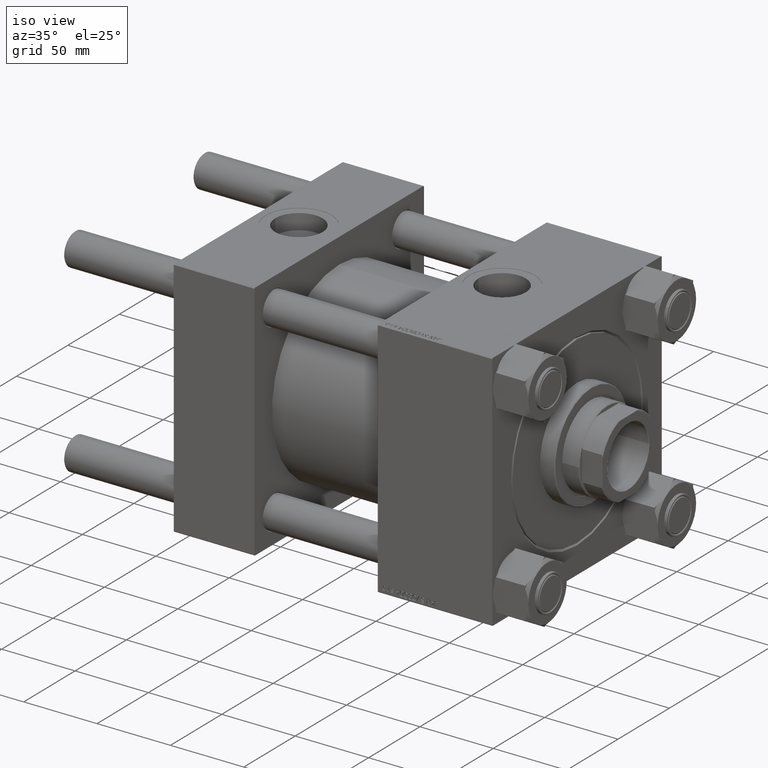
[diagram: clean part render]
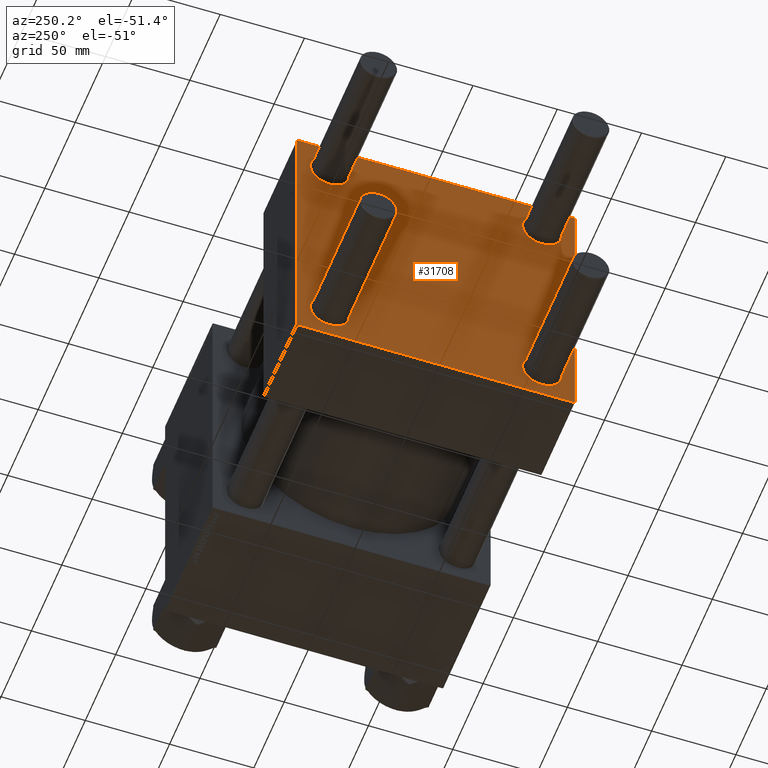
[diagram: tour spotlight — one face highlighted and labeled with its STEP entity id]
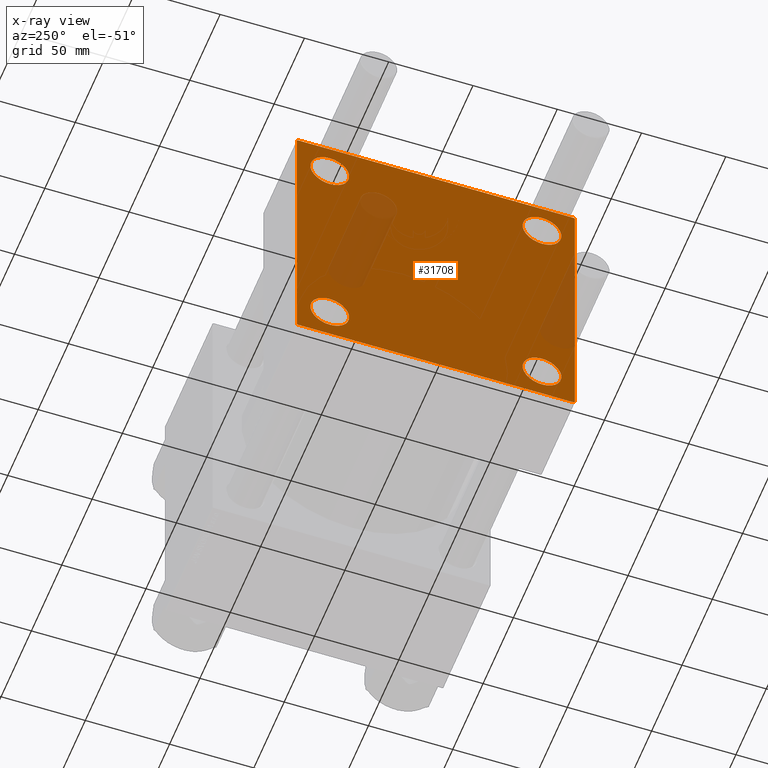
[diagram: x-ray of the same camera — body ghosted, this tour face saturated]
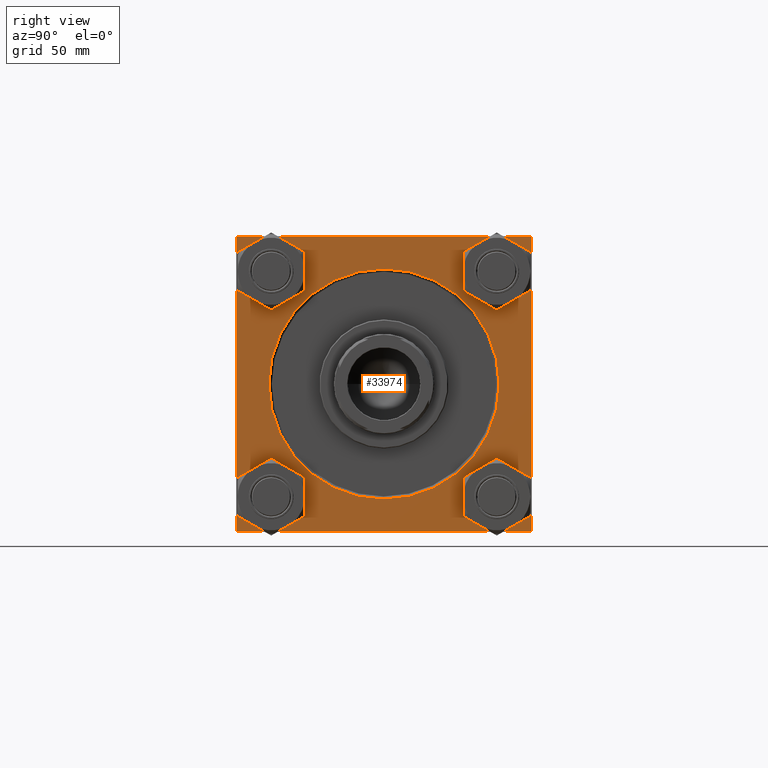
[diagram: tour spotlight — one face highlighted and labeled with its STEP entity id]
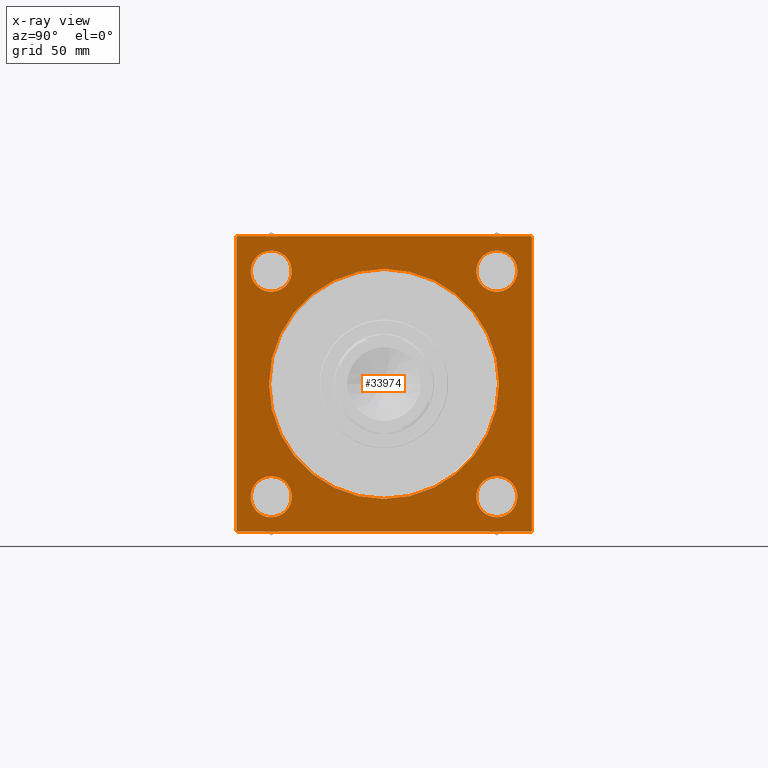
[diagram: x-ray of the same camera — body ghosted, this tour face saturated]
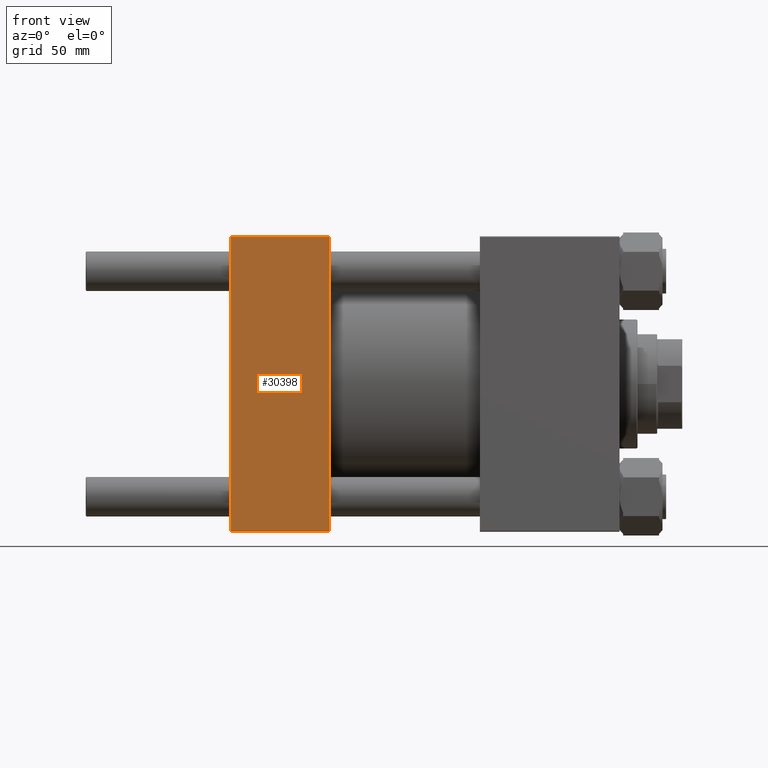
[diagram: tour spotlight — one face highlighted and labeled with its STEP entity id]
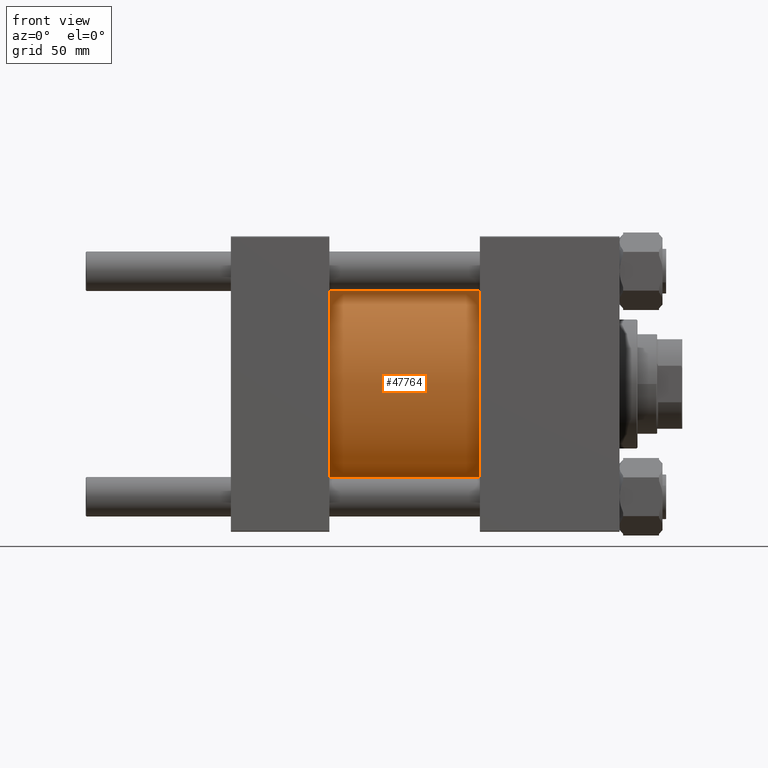
[diagram: tour spotlight — one face highlighted and labeled with its STEP entity id]
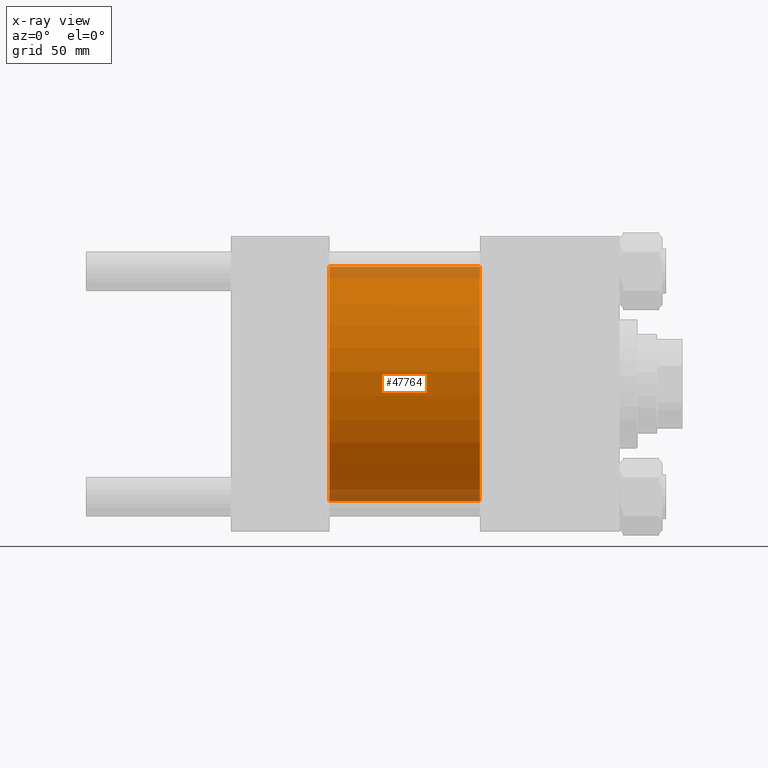
[diagram: x-ray of the same camera — body ghosted, this tour face saturated]
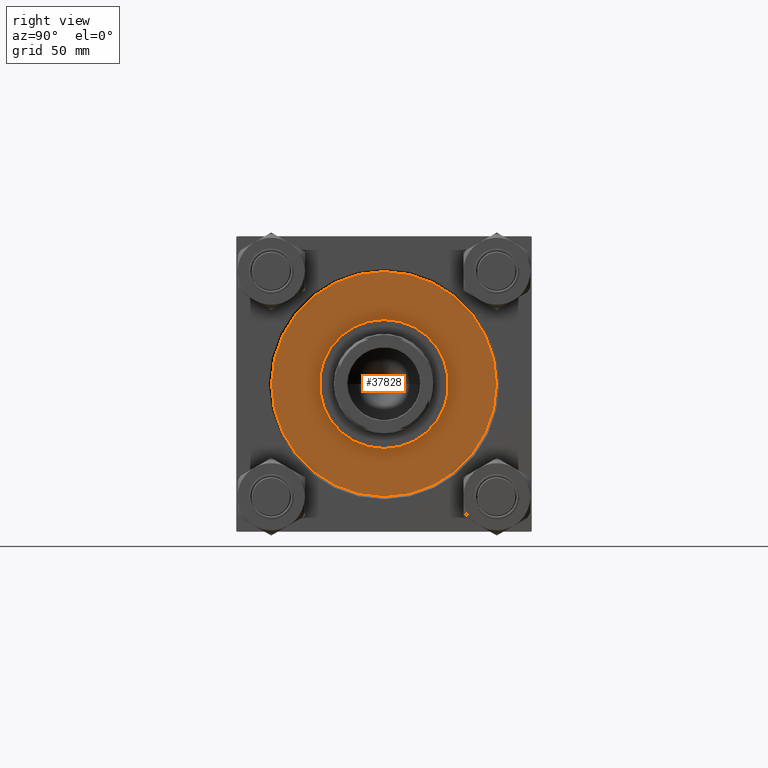
[diagram: tour spotlight — one face highlighted and labeled with its STEP entity id]
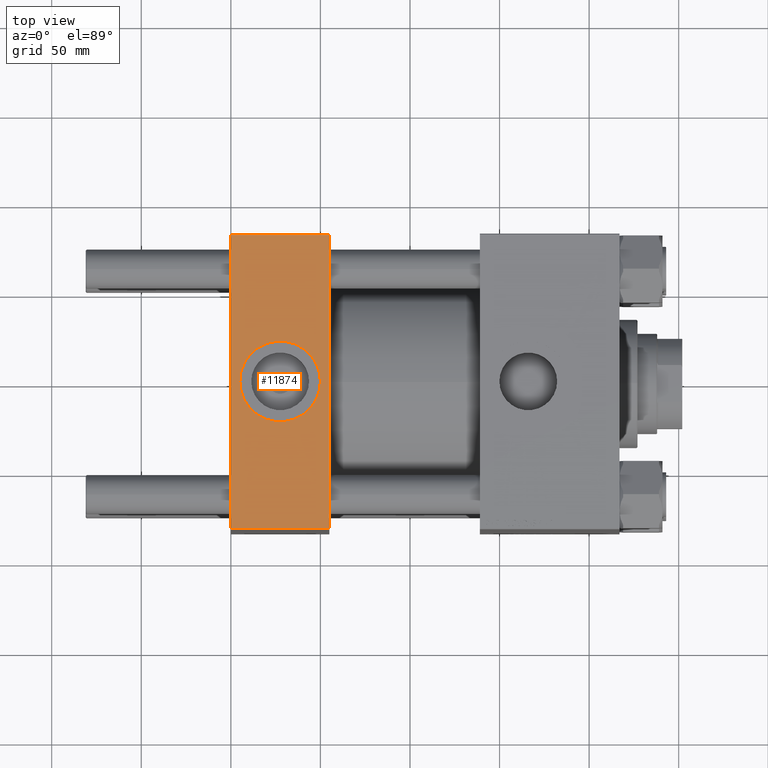
[diagram: tour spotlight — one face highlighted and labeled with its STEP entity id]
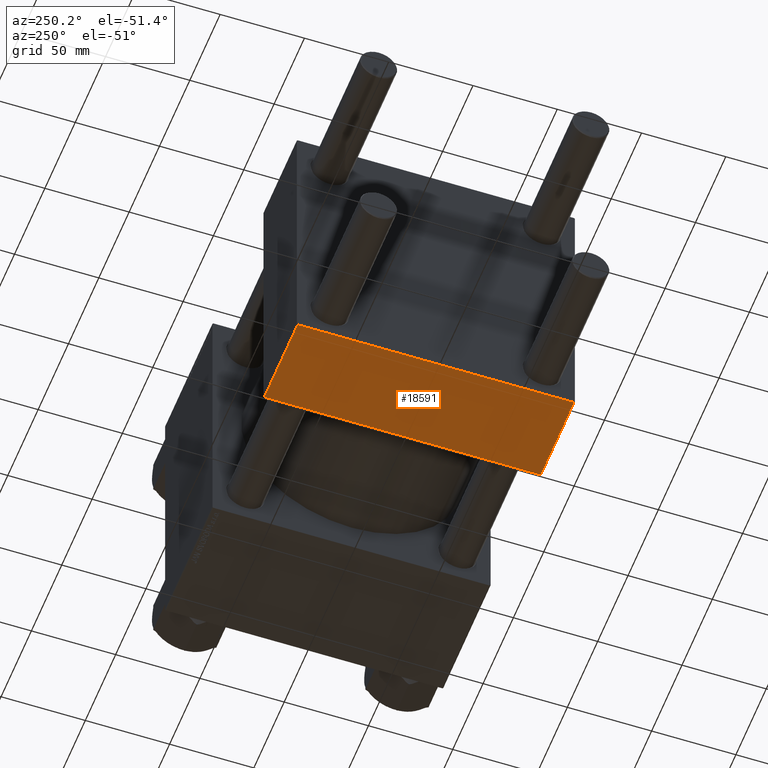
[diagram: tour spotlight — one face highlighted and labeled with its STEP entity id]
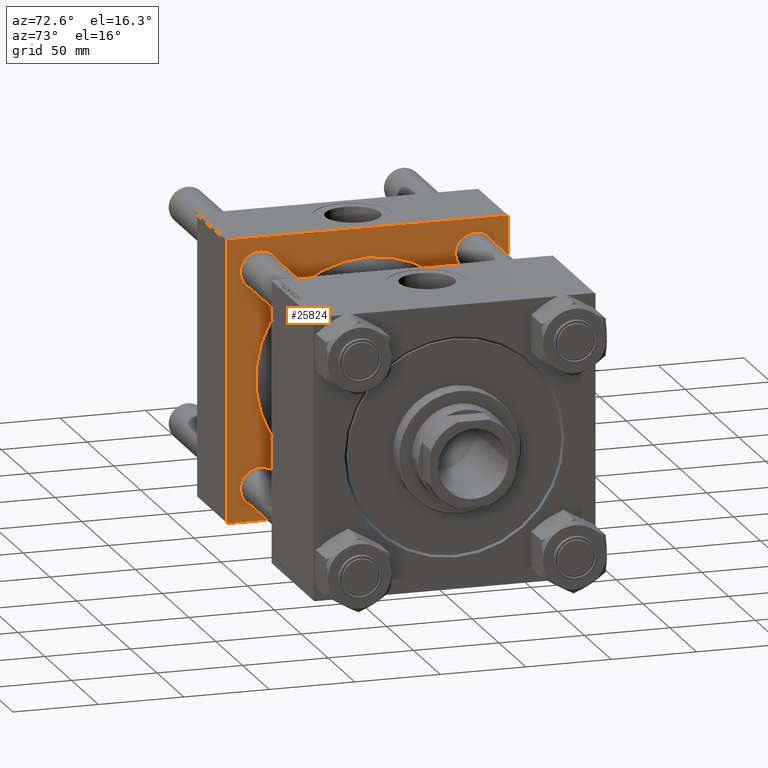
[diagram: tour spotlight — one face highlighted and labeled with its STEP entity id]
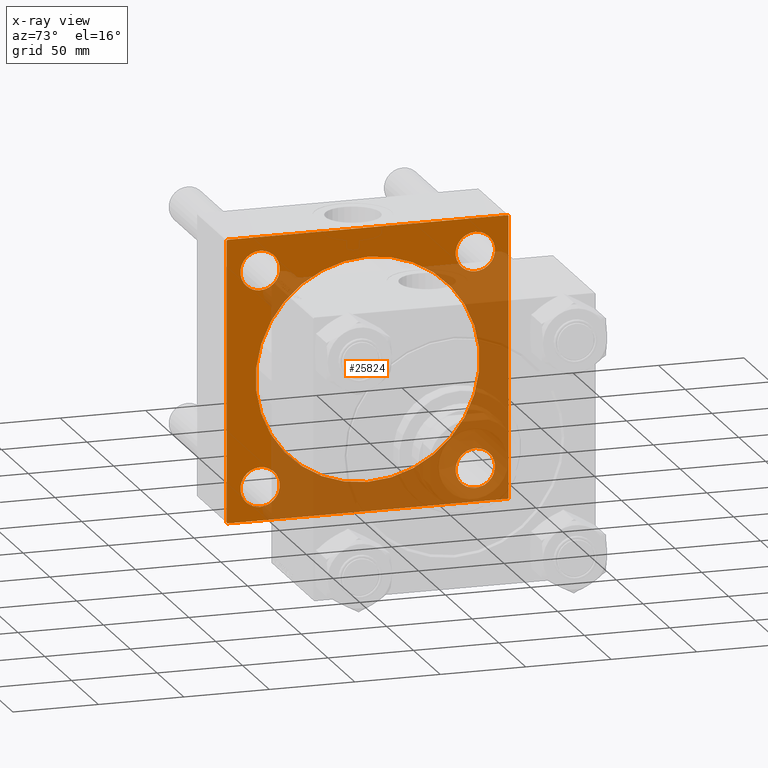
[diagram: x-ray of the same camera — body ghosted, this tour face saturated]
A machine part: a face-by-face anatomy tour. The part has 1182 B-rep faces; the first image is the clean iso view, then the 8 largest visible faces are spotlighted one at a time (largest first), each with its STEP entity span.

Face 1 — auxiliary view, entity #31708. An x-ray twin of the same camera follows (body ghosted, this face saturated) — the face is partly hidden behind the body. In plain terms, the highlighted planar face has unit normal (-1, 0, 0).
Definition (entity closure, byte-faithful):
#264 = CARTESIAN_POINT ( 'NONE',  ( 0.000000000000000000, 82.00000000000005684, 82.50000000000002842 ) ) ;
#354 = VERTEX_POINT ( 'NONE', #19620 ) ;
#358 = FACE_BOUND ( 'NONE', #7409, .T. ) ;
#392 = VECTOR ( 'NONE', #36004, 999.9999999999998863 ) ;
#1370 = VERTEX_POINT ( 'NONE', #15887 ) ;
#1835 = AXIS2_PLACEMENT_3D ( 'NONE', #24413, #16551, #39939 ) ;
#1848 = VERTEX_POINT ( 'NONE', #46249 ) ;
#2162 = CARTESIAN_POINT ( 'NONE',  ( 0.000000000000000000, -82.49999999999997158, 82.50000000000001421 ) ) ;
#2516 = DIRECTION ( 'NONE',  ( 1.000000000000000000, -0.000000000000000000, -0.000000000000000000 ) ) ;
#2835 = VERTEX_POINT ( 'NONE', #17130 ) ;
#3264 = EDGE_CURVE ( 'NONE', #1848, #36804, #14828, .T. ) ;
#3395 = CARTESIAN_POINT ( 'NONE',  ( 0.000000000000000000, 82.00000000000005684, -82.49999999999997158 ) ) ;
#3589 = AXIS2_PLACEMENT_3D ( 'NONE', #26814, #46166, #4189 ) ;
#3591 = DIRECTION ( 'NONE',  ( 1.000000000000000000, -0.000000000000000000, -0.000000000000000000 ) ) ;
#3622 = DIRECTION ( 'NONE',  ( 0.000000000000000000, -1.000000000000000000, -8.410780489584519171E-17 ) ) ;
#3944 = FACE_BOUND ( 'NONE', #48625, .T. ) ;
#4189 = DIRECTION ( 'NONE',  ( 0.000000000000000000, 0.000000000000000000, 1.000000000000000000 ) ) ;
#4455 = EDGE_CURVE ( 'NONE', #11918, #33232, #23769, .T. ) ;
#4552 = ORIENTED_EDGE ( 'NONE', *, *, #19467, .T. ) ;
#4737 = CARTESIAN_POINT ( 'NONE',  ( 0.000000000000000000, -82.25000000000115108, -82.24999999999886313 ) ) ;
#5975 = AXIS2_PLACEMENT_3D ( 'NONE', #21832, #2516, #33527 ) ;
#6289 = VERTEX_POINT ( 'NONE', #45270 ) ;
#6659 = VERTEX_POINT ( 'NONE', #48147 ) ;
#6662 = CARTESIAN_POINT ( 'NONE',  ( 0.000000000000000000, 82.50000000000002842, 82.00000000000005684 ) ) ;
#7187 = LINE ( 'NONE', #23681, #44238 ) ;
#7405 = DIRECTION ( 'NONE',  ( 0.000000000000000000, 0.000000000000000000, 1.000000000000000000 ) ) ;
#7409 = EDGE_LOOP ( 'NONE', ( #36109, #18303 ) ) ;
#7796 = LINE ( 'NONE', #35502, #39658 ) ;
#7893 = EDGE_CURVE ( 'NONE', #6659, #9413, #33633, .T. ) ;
#8000 = FACE_BOUND ( 'NONE', #36123, .T. ) ;
#8374 = AXIS2_PLACEMENT_3D ( 'NONE', #9909, #26147, #37366 ) ;
#9302 = EDGE_CURVE ( 'NONE', #36804, #1848, #14924, .T. ) ;
#9413 = VERTEX_POINT ( 'NONE', #24066 ) ;
#9599 = EDGE_LOOP ( 'NONE', ( #44645, #37124 ) ) ;
#9826 = LINE ( 'NONE', #32467, #40965 ) ;
#9909 = CARTESIAN_POINT ( 'NONE',  ( 0.000000000000000000, -62.94999999999998153, 62.95000000000001705 ) ) ;
#10390 = VECTOR ( 'NONE', #25985, 1000.000000000000114 ) ;
#10651 = EDGE_CURVE ( 'NONE', #6289, #1370, #36998, .T. ) ;
#10807 = ORIENTED_EDGE ( 'NONE', *, *, #19224, .T. ) ;
#11202 = CIRCLE ( 'NONE', #39595, 11.50000000000001066 ) ;
#11703 = AXIS2_PLACEMENT_3D ( 'NONE', #30768, #39389, #20074 ) ;
#11822 = FACE_OUTER_BOUND ( 'NONE', #28819, .T. ) ;
#11918 = VERTEX_POINT ( 'NONE', #20429 ) ;
#12739 = EDGE_CURVE ( 'NONE', #47763, #1370, #27846, .T. ) ;
#13036 = ORIENTED_EDGE ( 'NONE', *, *, #12739, .T. ) ;
#13362 = LINE ( 'NONE', #29122, #46975 ) ;
#14062 = DIRECTION ( 'NONE',  ( -0.000000000000000000, 0.7071067811865474617, 0.7071067811865474617 ) ) ;
#14442 = CARTESIAN_POINT ( 'NONE',  ( 0.000000000000000000, -62.94999999999998153, -62.95000000000001705 ) ) ;
#14828 = CIRCLE ( 'NONE', #1835, 11.50000000000001066 ) ;
#14865 = AXIS2_PLACEMENT_3D ( 'NONE', #14442, #44985, #44488 ) ;
#14916 = ORIENTED_EDGE ( 'NONE', *, *, #41611, .T. ) ;
#14924 = CIRCLE ( 'NONE', #5975, 11.50000000000001066 ) ;
#15887 = CARTESIAN_POINT ( 'NONE',  ( 0.000000000000000000, -82.50000000000000000, -81.99999999999998579 ) ) ;
#16007 = CARTESIAN_POINT ( 'NONE',  ( 0.000000000000000000, 62.95000000000000284, -74.45000000000001705 ) ) ;
#16390 = FACE_BOUND ( 'NONE', #9599, .T. ) ;
#16551 = DIRECTION ( 'NONE',  ( 1.000000000000000000, -0.000000000000000000, -0.000000000000000000 ) ) ;
#17130 = CARTESIAN_POINT ( 'NONE',  ( 0.000000000000000000, -81.99999999999997158, 82.50000000000001421 ) ) ;
#17210 = VERTEX_POINT ( 'NONE', #3395 ) ;
#17427 = DIRECTION ( 'NONE',  ( 0.000000000000000000, -1.682156097916903588E-16, -1.000000000000000000 ) ) ;
#17889 = LINE ( 'NONE', #33389, #28214 ) ;
#18303 = ORIENTED_EDGE ( 'NONE', *, *, #9302, .T. ) ;
#19203 = CARTESIAN_POINT ( 'NONE',  ( 0.000000000000000000, -62.94999999999998153, -62.95000000000001705 ) ) ;
#19224 = EDGE_CURVE ( 'NONE', #29857, #34120, #38187, .T. ) ;
#19467 = EDGE_CURVE ( 'NONE', #33232, #11918, #11202, .T. ) ;
#19620 = CARTESIAN_POINT ( 'NONE',  ( 0.000000000000000000, -62.94999999999998153, 74.45000000000003126 ) ) ;
#20023 = AXIS2_PLACEMENT_3D ( 'NONE', #40512, #3591, #7405 ) ;
#20074 = DIRECTION ( 'NONE',  ( 0.000000000000000000, 0.000000000000000000, 1.000000000000000000 ) ) ;
#20429 = CARTESIAN_POINT ( 'NONE',  ( 0.000000000000000000, -62.94999999999998153, -51.45000000000000995 ) ) ;
#21634 = CARTESIAN_POINT ( 'NONE',  ( 0.000000000000000000, -62.94999999999998153, 51.45000000000000995 ) ) ;
#21769 = EDGE_CURVE ( 'NONE', #17210, #47763, #13362, .T. ) ;
#21832 = CARTESIAN_POINT ( 'NONE',  ( 0.000000000000000000, 62.95000000000000284, -62.95000000000000284 ) ) ;
#22420 = CARTESIAN_POINT ( 'NONE',  ( 0.000000000000000000, 82.25000000000002842, 82.25000000000002842 ) ) ;
#22791 = DIRECTION ( 'NONE',  ( -0.000000000000000000, -0.7071067811865474617, -0.7071067811865474617 ) ) ;
#23681 = CARTESIAN_POINT ( 'NONE',  ( 0.000000000000000000, 82.50000000000002842, 82.50000000000002842 ) ) ;
#23769 = CIRCLE ( 'NONE', #14865, 11.50000000000001066 ) ;
#24009 = DIRECTION ( 'NONE',  ( 1.000000000000000000, -0.000000000000000000, -0.000000000000000000 ) ) ;
#24066 = CARTESIAN_POINT ( 'NONE',  ( 0.000000000000000000, 62.95000000000000284, 74.45000000000001705 ) ) ;
#24413 = CARTESIAN_POINT ( 'NONE',  ( 0.000000000000000000, 62.95000000000000284, -62.95000000000000284 ) ) ;
#24640 = CIRCLE ( 'NONE', #31148, 11.50000000000001066 ) ;
#24653 = ORIENTED_EDGE ( 'NONE', *, *, #7893, .T. ) ;
#25890 = CARTESIAN_POINT ( 'NONE',  ( 0.000000000000000000, 82.50000000000002842, -82.00000000000000000 ) ) ;
#25985 = DIRECTION ( 'NONE',  ( 0.000000000000000000, 0.7071067811865474617, -0.7071067811865474617 ) ) ;
#26147 = DIRECTION ( 'NONE',  ( 1.000000000000000000, -0.000000000000000000, -0.000000000000000000 ) ) ;
#26814 = CARTESIAN_POINT ( 'NONE',  ( 0.000000000000000000, 0.000000000000000000, 0.000000000000000000 ) ) ;
#26820 = DIRECTION ( 'NONE',  ( 0.000000000000000000, 0.000000000000000000, 1.000000000000000000 ) ) ;
#26842 = EDGE_CURVE ( 'NONE', #354, #36700, #24640, .T. ) ;
#27846 = LINE ( 'NONE', #4737, #392 ) ;
#28214 = VECTOR ( 'NONE', #14062, 1000.000000000000114 ) ;
#28819 = EDGE_LOOP ( 'NONE', ( #38983, #33313, #36633, #13036, #43367, #36068, #47606, #10807 ) ) ;
#28830 = EDGE_CURVE ( 'NONE', #36700, #354, #30307, .T. ) ;
#29122 = CARTESIAN_POINT ( 'NONE',  ( 0.000000000000000000, 82.50000000000002842, -82.49999999999997158 ) ) ;
#29644 = CARTESIAN_POINT ( 'NONE',  ( 0.000000000000000000, -62.94999999999998153, 62.95000000000001705 ) ) ;
#29857 = VERTEX_POINT ( 'NONE', #264 ) ;
#30133 = DIRECTION ( 'NONE',  ( 1.000000000000000000, -0.000000000000000000, -0.000000000000000000 ) ) ;
#30307 = CIRCLE ( 'NONE', #8374, 11.50000000000001066 ) ;
#30768 = CARTESIAN_POINT ( 'NONE',  ( 0.000000000000000000, 62.95000000000000284, 62.95000000000000284 ) ) ;
#30894 = PLANE ( 'NONE',  #3589 ) ;
#31148 = AXIS2_PLACEMENT_3D ( 'NONE', #29644, #30133, #37765 ) ;
#31337 = EDGE_CURVE ( 'NONE', #29857, #2835, #7187, .T. ) ;
#31336 = CARTESIAN_POINT ( 'NONE',  ( 0.000000000000000000, -82.00000000000000000, -82.50000000000000000 ) ) ;
#31514 = EDGE_CURVE ( 'NONE', #34120, #49564, #9826, .T. ) ;
#31708 = ADVANCED_FACE ( 'NONE', ( #16390, #3944, #358, #8000, #11822 ), #30894, .T. ) ;
#32467 = CARTESIAN_POINT ( 'NONE',  ( 0.000000000000000000, 82.50000000000002842, 82.50000000000002842 ) ) ;
#33232 = VERTEX_POINT ( 'NONE', #42996 ) ;
#33313 = ORIENTED_EDGE ( 'NONE', *, *, #46589, .T. ) ;
#33389 = CARTESIAN_POINT ( 'NONE',  ( 0.000000000000000000, -82.25000000000000000, 82.25000000000000000 ) ) ;
#33527 = DIRECTION ( 'NONE',  ( 0.000000000000000000, 0.000000000000000000, 1.000000000000000000 ) ) ;
#33633 = CIRCLE ( 'NONE', #11703, 11.50000000000001066 ) ;
#34120 = VERTEX_POINT ( 'NONE', #6662 ) ;
#35502 = CARTESIAN_POINT ( 'NONE',  ( 0.000000000000000000, 82.25000000000001421, -82.25000000000001421 ) ) ;
#36004 = DIRECTION ( 'NONE',  ( 0.000000000000000000, -0.7071067811865376918, 0.7071067811865574537 ) ) ;
#36068 = ORIENTED_EDGE ( 'NONE', *, *, #39649, .T. ) ;
#36109 = ORIENTED_EDGE ( 'NONE', *, *, #3264, .T. ) ;
#36123 = EDGE_LOOP ( 'NONE', ( #14916, #24653 ) ) ;
#36633 = ORIENTED_EDGE ( 'NONE', *, *, #21769, .T. ) ;
#36700 = VERTEX_POINT ( 'NONE', #21634 ) ;
#36748 = DIRECTION ( 'NONE',  ( 0.000000000000000000, -1.000000000000000000, -1.682156097916903588E-16 ) ) ;
#36804 = VERTEX_POINT ( 'NONE', #16007 ) ;
#36998 = LINE ( 'NONE', #2162, #40931 ) ;
#37124 = ORIENTED_EDGE ( 'NONE', *, *, #28830, .T. ) ;
#37366 = DIRECTION ( 'NONE',  ( 0.000000000000000000, 0.000000000000000000, 1.000000000000000000 ) ) ;
#37765 = DIRECTION ( 'NONE',  ( 0.000000000000000000, 0.000000000000000000, 1.000000000000000000 ) ) ;
#38187 = LINE ( 'NONE', #22420, #10390 ) ;
#38983 = ORIENTED_EDGE ( 'NONE', *, *, #31514, .T. ) ;
#39389 = DIRECTION ( 'NONE',  ( 1.000000000000000000, -0.000000000000000000, -0.000000000000000000 ) ) ;
#39595 = AXIS2_PLACEMENT_3D ( 'NONE', #19203, #24009, #26820 ) ;
#39649 = EDGE_CURVE ( 'NONE', #6289, #2835, #17889, .T. ) ;
#39658 = VECTOR ( 'NONE', #22791, 1000.000000000000114 ) ;
#39939 = DIRECTION ( 'NONE',  ( 0.000000000000000000, 0.000000000000000000, 1.000000000000000000 ) ) ;
#40512 = CARTESIAN_POINT ( 'NONE',  ( 0.000000000000000000, 62.95000000000000284, 62.95000000000000284 ) ) ;
#40931 = VECTOR ( 'NONE', #17427, 1000.000000000000000 ) ;
#40965 = VECTOR ( 'NONE', #44175, 1000.000000000000000 ) ;
#41611 = EDGE_CURVE ( 'NONE', #9413, #6659, #46824, .T. ) ;
#42996 = CARTESIAN_POINT ( 'NONE',  ( 0.000000000000000000, -62.94999999999998153, -74.45000000000003126 ) ) ;
#43367 = ORIENTED_EDGE ( 'NONE', *, *, #10651, .F. ) ;
#44175 = DIRECTION ( 'NONE',  ( 0.000000000000000000, 0.000000000000000000, -1.000000000000000000 ) ) ;
#44238 = VECTOR ( 'NONE', #3622, 1000.000000000000000 ) ;
#44488 = DIRECTION ( 'NONE',  ( 0.000000000000000000, 0.000000000000000000, 1.000000000000000000 ) ) ;
#44645 = ORIENTED_EDGE ( 'NONE', *, *, #26842, .T. ) ;
#44985 = DIRECTION ( 'NONE',  ( 1.000000000000000000, -0.000000000000000000, -0.000000000000000000 ) ) ;
#45270 = CARTESIAN_POINT ( 'NONE',  ( 0.000000000000000000, -82.49999999999997158, 82.00000000000001421 ) ) ;
#46166 = DIRECTION ( 'NONE',  ( -1.000000000000000000, 0.000000000000000000, 0.000000000000000000 ) ) ;
#46249 = CARTESIAN_POINT ( 'NONE',  ( 0.000000000000000000, 62.95000000000000284, -51.44999999999999574 ) ) ;
#46589 = EDGE_CURVE ( 'NONE', #49564, #17210, #7796, .T. ) ;
#46824 = CIRCLE ( 'NONE', #20023, 11.50000000000001066 ) ;
#46975 = VECTOR ( 'NONE', #36748, 1000.000000000000000 ) ;
#47606 = ORIENTED_EDGE ( 'NONE', *, *, #31337, .F. ) ;
#47763 = VERTEX_POINT ( 'NONE', #31336 ) ;
#48147 = CARTESIAN_POINT ( 'NONE',  ( 0.000000000000000000, 62.95000000000000284, 51.44999999999999574 ) ) ;
#48625 = EDGE_LOOP ( 'NONE', ( #50054, #4552 ) ) ;
#49564 = VERTEX_POINT ( 'NONE', #25890 ) ;
#50054 = ORIENTED_EDGE ( 'NONE', *, *, #4455, .T. ) ;

Face 2 — right view, entity #33974. An x-ray twin of the same camera follows (body ghosted, this face saturated) — the face is partly hidden behind the body. In plain terms, the highlighted planar face has unit normal (-1, 0, 0).
Definition (entity closure, byte-faithful):
#26 = ORIENTED_EDGE ( 'NONE', *, *, #34300, .T. ) ;
#193 = CIRCLE ( 'NONE', #28650, 64.24999999999997158 ) ;
#371 = DIRECTION ( 'NONE',  ( -1.000000000000000000, -0.000000000000000000, 0.000000000000000000 ) ) ;
#592 = VERTEX_POINT ( 'NONE', #18574 ) ;
#941 = CARTESIAN_POINT ( 'NONE',  ( 217.0000000000000284, 7.868355684521741158E-15, 64.24999999999997158 ) ) ;
#1546 = CARTESIAN_POINT ( 'NONE',  ( 217.0000000000000284, 62.95000000000000284, -62.95000000000000284 ) ) ;
#1628 = DIRECTION ( 'NONE',  ( -1.000000000000000000, -0.000000000000000000, 0.000000000000000000 ) ) ;
#2114 = FACE_BOUND ( 'NONE', #12487, .T. ) ;
#2471 = VERTEX_POINT ( 'NONE', #28877 ) ;
#2863 = DIRECTION ( 'NONE',  ( -0.000000000000000000, 0.7071067811865474617, 0.7071067811865474617 ) ) ;
#3227 = CARTESIAN_POINT ( 'NONE',  ( 217.0000000000000284, -82.49999999999997158, 82.49999999999997158 ) ) ;
#4906 = VERTEX_POINT ( 'NONE', #17114 ) ;
#5205 = CIRCLE ( 'NONE', #39306, 11.49999999999995381 ) ;
#5427 = DIRECTION ( 'NONE',  ( 0.000000000000000000, 0.000000000000000000, 1.000000000000000000 ) ) ;
#5468 = DIRECTION ( 'NONE',  ( -1.000000000000000000, -0.000000000000000000, 0.000000000000000000 ) ) ;
#5500 = VERTEX_POINT ( 'NONE', #44139 ) ;
#5930 = DIRECTION ( 'NONE',  ( -1.000000000000000000, -0.000000000000000000, 0.000000000000000000 ) ) ;
#6734 = EDGE_CURVE ( 'NONE', #21352, #26808, #12809, .T. ) ;
#7145 = DIRECTION ( 'NONE',  ( 0.000000000000000000, -1.000000000000000000, 0.000000000000000000 ) ) ;
#7237 = DIRECTION ( 'NONE',  ( 0.000000000000000000, 0.000000000000000000, 1.000000000000000000 ) ) ;
#7475 = LINE ( 'NONE', #37994, #41855 ) ;
#7494 = ORIENTED_EDGE ( 'NONE', *, *, #36462, .T. ) ;
#8450 = AXIS2_PLACEMENT_3D ( 'NONE', #38275, #371, #50228 ) ;
#9256 = CARTESIAN_POINT ( 'NONE',  ( 217.0000000000000284, -62.94999999999998153, 62.95000000000001705 ) ) ;
#9277 = CARTESIAN_POINT ( 'NONE',  ( 217.0000000000000284, 82.50000000000001421, 82.50000000000000000 ) ) ;
#9359 = ORIENTED_EDGE ( 'NONE', *, *, #46842, .T. ) ;
#9445 = EDGE_LOOP ( 'NONE', ( #33629, #46887 ) ) ;
#9532 = DIRECTION ( 'NONE',  ( 0.000000000000000000, 0.000000000000000000, 1.000000000000000000 ) ) ;
#9567 = CARTESIAN_POINT ( 'NONE',  ( 217.0000000000000284, 82.50000000000001421, -82.00000000000005684 ) ) ;
#9639 = VECTOR ( 'NONE', #2863, 1000.000000000000114 ) ;
#10186 = LINE ( 'NONE', #32830, #32126 ) ;
#10255 = CARTESIAN_POINT ( 'NONE',  ( 217.0000000000000284, -82.49999999999997158, 81.99999999999991473 ) ) ;
#10280 = EDGE_CURVE ( 'NONE', #11459, #42439, #10896, .T. ) ;
#10443 = EDGE_CURVE ( 'NONE', #21352, #44318, #21213, .T. ) ;
#10512 = EDGE_CURVE ( 'NONE', #42439, #11459, #5205, .T. ) ;
#10518 = CARTESIAN_POINT ( 'NONE',  ( 217.0000000000000284, 82.50000000000001421, -82.00000000000005684 ) ) ;
#10771 = ORIENTED_EDGE ( 'NONE', *, *, #27742, .T. ) ;
#10896 = CIRCLE ( 'NONE', #8450, 11.49999999999995381 ) ;
#11206 = ORIENTED_EDGE ( 'NONE', *, *, #16280, .T. ) ;
#11459 = VERTEX_POINT ( 'NONE', #25908 ) ;
#11461 = CARTESIAN_POINT ( 'NONE',  ( 217.0000000000000284, -82.49999999999997158, 81.99999999999991473 ) ) ;
#11693 = AXIS2_PLACEMENT_3D ( 'NONE', #9256, #1628, #32902 ) ;
#12054 = CARTESIAN_POINT ( 'NONE',  ( 217.0000000000000284, -62.94999999999998153, 62.95000000000001705 ) ) ;
#12169 = CARTESIAN_POINT ( 'NONE',  ( 217.0000000000000284, 62.95000000000000284, -51.45000000000005258 ) ) ;
#12207 = DIRECTION ( 'NONE',  ( -1.000000000000000000, -0.000000000000000000, 0.000000000000000000 ) ) ;
#12299 = DIRECTION ( 'NONE',  ( -1.000000000000000000, -0.000000000000000000, 0.000000000000000000 ) ) ;
#12401 = VERTEX_POINT ( 'NONE', #12169 ) ;
#12423 = ORIENTED_EDGE ( 'NONE', *, *, #10443, .F. ) ;
#12487 = EDGE_LOOP ( 'NONE', ( #7494, #26 ) ) ;
#12563 = DIRECTION ( 'NONE',  ( 0.000000000000000000, 0.000000000000000000, 1.000000000000000000 ) ) ;
#12645 = EDGE_CURVE ( 'NONE', #27824, #19234, #38058, .T. ) ;
#12809 = LINE ( 'NONE', #32384, #37653 ) ;
#14072 = DIRECTION ( 'NONE',  ( -0.000000000000000000, -0.7071067811865573427, -0.7071067811865376918 ) ) ;
#14564 = LINE ( 'NONE', #9567, #9639 ) ;
#14618 = DIRECTION ( 'NONE',  ( -1.000000000000000000, -0.000000000000000000, 0.000000000000000000 ) ) ;
#16125 = CARTESIAN_POINT ( 'NONE',  ( 217.0000000000000284, 62.95000000000000284, 51.45000000000005258 ) ) ;
#16155 = AXIS2_PLACEMENT_3D ( 'NONE', #27054, #39257, #12563 ) ;
#16280 = EDGE_CURVE ( 'NONE', #45753, #19036, #22432, .T. ) ;
#16364 = EDGE_CURVE ( 'NONE', #33552, #592, #45183, .T. ) ;
#17114 = CARTESIAN_POINT ( 'NONE',  ( 217.0000000000000284, -62.94999999999998153, -74.44999999999997442 ) ) ;
#17204 = CARTESIAN_POINT ( 'NONE',  ( 217.0000000000000284, 62.95000000000000284, -62.95000000000000284 ) ) ;
#17212 = CARTESIAN_POINT ( 'NONE',  ( 217.0000000000000284, 82.00000000000004263, 82.50000000000000000 ) ) ;
#17350 = VERTEX_POINT ( 'NONE', #23457 ) ;
#17442 = EDGE_LOOP ( 'NONE', ( #40681, #9359 ) ) ;
#17513 = AXIS2_PLACEMENT_3D ( 'NONE', #48644, #5930, #5427 ) ;
#17628 = FACE_BOUND ( 'NONE', #40267, .T. ) ;
#18203 = CIRCLE ( 'NONE', #11693, 11.49999999999995381 ) ;
#18574 = CARTESIAN_POINT ( 'NONE',  ( 217.0000000000000284, -62.94999999999998153, 51.45000000000006679 ) ) ;
#19036 = VERTEX_POINT ( 'NONE', #40007 ) ;
#19234 = VERTEX_POINT ( 'NONE', #49634 ) ;
#19830 = ORIENTED_EDGE ( 'NONE', *, *, #35048, .T. ) ;
#20026 = EDGE_CURVE ( 'NONE', #5500, #45251, #41986, .T. ) ;
#20548 = ORIENTED_EDGE ( 'NONE', *, *, #10280, .T. ) ;
#21188 = DIRECTION ( 'NONE',  ( 0.000000000000000000, -0.7071067811865474617, 0.7071067811865474617 ) ) ;
#21213 = LINE ( 'NONE', #9277, #21425 ) ;
#21352 = VERTEX_POINT ( 'NONE', #30470 ) ;
#21398 = CARTESIAN_POINT ( 'NONE',  ( 217.0000000000000284, -82.00000000000004263, -82.50000000000002842 ) ) ;
#21425 = VECTOR ( 'NONE', #32155, 1000.000000000000000 ) ;
#22276 = EDGE_CURVE ( 'NONE', #5500, #44318, #14564, .T. ) ;
#22432 = CIRCLE ( 'NONE', #28945, 64.24999999999997158 ) ;
#22494 = AXIS2_PLACEMENT_3D ( 'NONE', #37503, #41329, #41830 ) ;
#22724 = DIRECTION ( 'NONE',  ( 0.000000000000000000, -1.000000000000000000, -1.682156097916904081E-16 ) ) ;
#23214 = AXIS2_PLACEMENT_3D ( 'NONE', #17204, #39310, #39824 ) ;
#23384 = EDGE_CURVE ( 'NONE', #17350, #27824, #37220, .T. ) ;
#23457 = CARTESIAN_POINT ( 'NONE',  ( 217.0000000000000284, -81.99999999999990052, 82.49999999999997158 ) ) ;
#24515 = CARTESIAN_POINT ( 'NONE',  ( 217.0000000000000284, 62.95000000000000284, 62.95000000000000284 ) ) ;
#24794 = VERTEX_POINT ( 'NONE', #41722 ) ;
#25731 = PLANE ( 'NONE',  #17513 ) ;
#25908 = CARTESIAN_POINT ( 'NONE',  ( 217.0000000000000284, 62.95000000000000284, 74.44999999999996021 ) ) ;
#26808 = VERTEX_POINT ( 'NONE', #17212 ) ;
#27054 = CARTESIAN_POINT ( 'NONE',  ( 217.0000000000000284, -62.94999999999998153, -62.95000000000001705 ) ) ;
#27385 = VECTOR ( 'NONE', #7145, 1000.000000000000000 ) ;
#27742 = EDGE_CURVE ( 'NONE', #19036, #45753, #193, .T. ) ;
#27824 = VERTEX_POINT ( 'NONE', #11461 ) ;
#28650 = AXIS2_PLACEMENT_3D ( 'NONE', #30531, #12207, #39148 ) ;
#28877 = CARTESIAN_POINT ( 'NONE',  ( 217.0000000000000284, 62.95000000000000284, -74.44999999999996021 ) ) ;
#28945 = AXIS2_PLACEMENT_3D ( 'NONE', #46149, #14618, #7237 ) ;
#30470 = CARTESIAN_POINT ( 'NONE',  ( 217.0000000000000284, 82.50000000000001421, 82.00000000000002842 ) ) ;
#30531 = CARTESIAN_POINT ( 'NONE',  ( 217.0000000000000284, 0.000000000000000000, 0.000000000000000000 ) ) ;
#31039 = EDGE_CURVE ( 'NONE', #592, #33552, #18203, .T. ) ;
#31107 = ORIENTED_EDGE ( 'NONE', *, *, #22276, .T. ) ;
#31866 = DIRECTION ( 'NONE',  ( 0.000000000000000000, 0.000000000000000000, 1.000000000000000000 ) ) ;
#32126 = VECTOR ( 'NONE', #44546, 999.9999999999998863 ) ;
#32155 = DIRECTION ( 'NONE',  ( 0.000000000000000000, 0.000000000000000000, -1.000000000000000000 ) ) ;
#32384 = CARTESIAN_POINT ( 'NONE',  ( 217.0000000000000284, 82.00000000000004263, 82.50000000000000000 ) ) ;
#32830 = CARTESIAN_POINT ( 'NONE',  ( 217.0000000000000284, -82.00000000000004263, -82.50000000000002842 ) ) ;
#32902 = DIRECTION ( 'NONE',  ( 0.000000000000000000, 0.000000000000000000, 1.000000000000000000 ) ) ;
#32913 = VECTOR ( 'NONE', #38301, 1000.000000000000000 ) ;
#33130 = FACE_OUTER_BOUND ( 'NONE', #37487, .T. ) ;
#33145 = ORIENTED_EDGE ( 'NONE', *, *, #33810, .T. ) ;
#33316 = DIRECTION ( 'NONE',  ( 0.000000000000000000, 0.000000000000000000, 1.000000000000000000 ) ) ;
#33552 = VERTEX_POINT ( 'NONE', #50304 ) ;
#33629 = ORIENTED_EDGE ( 'NONE', *, *, #31039, .T. ) ;
#33810 = EDGE_CURVE ( 'NONE', #26808, #17350, #7475, .T. ) ;
#33935 = ORIENTED_EDGE ( 'NONE', *, *, #12645, .T. ) ;
#33974 = ADVANCED_FACE ( 'NONE', ( #45091, #2114, #17628, #41261, #37198, #33130 ), #25731, .F. ) ;
#34040 = ORIENTED_EDGE ( 'NONE', *, *, #6734, .T. ) ;
#34300 = EDGE_CURVE ( 'NONE', #12401, #2471, #34554, .T. ) ;
#34554 = CIRCLE ( 'NONE', #46720, 11.49999999999995381 ) ;
#34706 = CIRCLE ( 'NONE', #22494, 11.49999999999995381 ) ;
#35048 = EDGE_CURVE ( 'NONE', #19234, #45251, #10186, .T. ) ;
#35376 = ORIENTED_EDGE ( 'NONE', *, *, #10512, .T. ) ;
#36462 = EDGE_CURVE ( 'NONE', #2471, #12401, #50044, .T. ) ;
#36903 = EDGE_LOOP ( 'NONE', ( #10771, #11206 ) ) ;
#37198 = FACE_BOUND ( 'NONE', #36903, .T. ) ;
#37220 = LINE ( 'NONE', #10255, #38917 ) ;
#37487 = EDGE_LOOP ( 'NONE', ( #33935, #19830, #49083, #31107, #12423, #34040, #33145, #41751 ) ) ;
#37503 = CARTESIAN_POINT ( 'NONE',  ( 217.0000000000000284, -62.94999999999998153, -62.95000000000001705 ) ) ;
#37653 = VECTOR ( 'NONE', #21188, 1000.000000000000114 ) ;
#37994 = CARTESIAN_POINT ( 'NONE',  ( 217.0000000000000284, 82.50000000000001421, 82.50000000000000000 ) ) ;
#38058 = LINE ( 'NONE', #3227, #32913 ) ;
#38275 = CARTESIAN_POINT ( 'NONE',  ( 217.0000000000000284, 62.95000000000000284, 62.95000000000000284 ) ) ;
#38301 = DIRECTION ( 'NONE',  ( 0.000000000000000000, -1.682156097916903834E-16, -1.000000000000000000 ) ) ;
#38917 = VECTOR ( 'NONE', #14072, 1000.000000000000114 ) ;
#39148 = DIRECTION ( 'NONE',  ( 0.000000000000000000, 0.000000000000000000, 1.000000000000000000 ) ) ;
#39257 = DIRECTION ( 'NONE',  ( -1.000000000000000000, -0.000000000000000000, 0.000000000000000000 ) ) ;
#39306 = AXIS2_PLACEMENT_3D ( 'NONE', #24515, #5468, #9532 ) ;
#39310 = DIRECTION ( 'NONE',  ( -1.000000000000000000, -0.000000000000000000, 0.000000000000000000 ) ) ;
#39411 = EDGE_CURVE ( 'NONE', #4906, #24794, #34706, .T. ) ;
#39824 = DIRECTION ( 'NONE',  ( 0.000000000000000000, 0.000000000000000000, 1.000000000000000000 ) ) ;
#40007 = CARTESIAN_POINT ( 'NONE',  ( 217.0000000000000284, 0.000000000000000000, -64.24999999999997158 ) ) ;
#40267 = EDGE_LOOP ( 'NONE', ( #35376, #20548 ) ) ;
#40681 = ORIENTED_EDGE ( 'NONE', *, *, #39411, .T. ) ;
#41261 = FACE_BOUND ( 'NONE', #9445, .T. ) ;
#41329 = DIRECTION ( 'NONE',  ( -1.000000000000000000, -0.000000000000000000, 0.000000000000000000 ) ) ;
#41722 = CARTESIAN_POINT ( 'NONE',  ( 217.0000000000000284, -62.94999999999998153, -51.45000000000006679 ) ) ;
#41751 = ORIENTED_EDGE ( 'NONE', *, *, #23384, .T. ) ;
#41830 = DIRECTION ( 'NONE',  ( 0.000000000000000000, 0.000000000000000000, 1.000000000000000000 ) ) ;
#41855 = VECTOR ( 'NONE', #22724, 1000.000000000000000 ) ;
#41930 = AXIS2_PLACEMENT_3D ( 'NONE', #12054, #12299, #31866 ) ;
#41986 = LINE ( 'NONE', #49604, #27385 ) ;
#42439 = VERTEX_POINT ( 'NONE', #16125 ) ;
#44139 = CARTESIAN_POINT ( 'NONE',  ( 217.0000000000000284, 82.00000000000004263, -82.50000000000002842 ) ) ;
#44318 = VERTEX_POINT ( 'NONE', #10518 ) ;
#44546 = DIRECTION ( 'NONE',  ( 0.000000000000000000, 0.7071067811865376918, -0.7071067811865574537 ) ) ;
#45091 = FACE_BOUND ( 'NONE', #17442, .T. ) ;
#45183 = CIRCLE ( 'NONE', #41930, 11.49999999999995381 ) ;
#45251 = VERTEX_POINT ( 'NONE', #21398 ) ;
#45753 = VERTEX_POINT ( 'NONE', #941 ) ;
#46149 = CARTESIAN_POINT ( 'NONE',  ( 217.0000000000000284, 0.000000000000000000, 0.000000000000000000 ) ) ;
#46720 = AXIS2_PLACEMENT_3D ( 'NONE', #1546, #48073, #33316 ) ;
#46842 = EDGE_CURVE ( 'NONE', #24794, #4906, #46998, .T. ) ;
#46887 = ORIENTED_EDGE ( 'NONE', *, *, #16364, .T. ) ;
#46998 = CIRCLE ( 'NONE', #16155, 11.49999999999995381 ) ;
#48073 = DIRECTION ( 'NONE',  ( -1.000000000000000000, -0.000000000000000000, 0.000000000000000000 ) ) ;
#48644 = CARTESIAN_POINT ( 'NONE',  ( 217.0000000000000284, 0.000000000000000000, 0.000000000000000000 ) ) ;
#49083 = ORIENTED_EDGE ( 'NONE', *, *, #20026, .F. ) ;
#49604 = CARTESIAN_POINT ( 'NONE',  ( 217.0000000000000284, 82.50000000000001421, -82.50000000000002842 ) ) ;
#49634 = CARTESIAN_POINT ( 'NONE',  ( 217.0000000000000284, -82.50000000000000000, -82.00000000000005684 ) ) ;
#50044 = CIRCLE ( 'NONE', #23214, 11.49999999999995381 ) ;
#50228 = DIRECTION ( 'NONE',  ( 0.000000000000000000, 0.000000000000000000, 1.000000000000000000 ) ) ;
#50304 = CARTESIAN_POINT ( 'NONE',  ( 217.0000000000000284, -62.94999999999998153, 74.44999999999997442 ) ) ;

Face 3 — front view, entity #30398. In plain terms, the highlighted planar face has unit normal (0, 1, -0).
Definition (entity closure, byte-faithful):
#211 = DIRECTION ( 'NONE',  ( 0.000000000000000000, 1.000000000000000000, -1.682156097916903588E-16 ) ) ;
#1370 = VERTEX_POINT ( 'NONE', #15887 ) ;
#2162 = CARTESIAN_POINT ( 'NONE',  ( 0.000000000000000000, -82.49999999999997158, 82.50000000000001421 ) ) ;
#3531 = CARTESIAN_POINT ( 'NONE',  ( 55.00000000000000000, -82.50000000000000000, -81.99999999999998579 ) ) ;
#3585 = ORIENTED_EDGE ( 'NONE', *, *, #10651, .T. ) ;
#3801 = PLANE ( 'NONE',  #46612 ) ;
#4333 = ORIENTED_EDGE ( 'NONE', *, *, #18149, .T. ) ;
#4498 = CARTESIAN_POINT ( 'NONE',  ( 55.00000000000000000, -82.49999999999997158, 82.50000000000001421 ) ) ;
#6289 = VERTEX_POINT ( 'NONE', #45270 ) ;
#6408 = VERTEX_POINT ( 'NONE', #3531 ) ;
#7605 = CARTESIAN_POINT ( 'NONE',  ( 55.00000000000000000, -82.49999999999997158, 82.50000000000001421 ) ) ;
#8855 = LINE ( 'NONE', #28688, #19772 ) ;
#10651 = EDGE_CURVE ( 'NONE', #6289, #1370, #36998, .T. ) ;
#12680 = FACE_OUTER_BOUND ( 'NONE', #29309, .T. ) ;
#13801 = LINE ( 'NONE', #17871, #21713 ) ;
#15887 = CARTESIAN_POINT ( 'NONE',  ( 0.000000000000000000, -82.50000000000000000, -81.99999999999998579 ) ) ;
#17427 = DIRECTION ( 'NONE',  ( 0.000000000000000000, -1.682156097916903588E-16, -1.000000000000000000 ) ) ;
#17871 = CARTESIAN_POINT ( 'NONE',  ( 55.00000000000000000, -82.49999999999997158, 82.00000000000001421 ) ) ;
#18149 = EDGE_CURVE ( 'NONE', #42445, #6289, #13801, .T. ) ;
#19772 = VECTOR ( 'NONE', #40396, 1000.000000000000000 ) ;
#21713 = VECTOR ( 'NONE', #29302, 1000.000000000000000 ) ;
#22991 = EDGE_CURVE ( 'NONE', #42445, #6408, #27613, .T. ) ;
#25763 = EDGE_CURVE ( 'NONE', #1370, #6408, #8855, .T. ) ;
#27382 = VECTOR ( 'NONE', #35506, 1000.000000000000000 ) ;
#27613 = LINE ( 'NONE', #4498, #27382 ) ;
#28688 = CARTESIAN_POINT ( 'NONE',  ( 55.00000000000000000, -82.50000000000000000, -81.99999999999998579 ) ) ;
#29302 = DIRECTION ( 'NONE',  ( -1.000000000000000000, 0.000000000000000000, 0.000000000000000000 ) ) ;
#29309 = EDGE_LOOP ( 'NONE', ( #3585, #44902, #46015, #4333 ) ) ;
#30398 = ADVANCED_FACE ( 'NONE', ( #12680 ), #3801, .F. ) ;
#31863 = CARTESIAN_POINT ( 'NONE',  ( 55.00000000000000000, -82.49999999999997158, 82.00000000000001421 ) ) ;
#35506 = DIRECTION ( 'NONE',  ( 0.000000000000000000, -1.682156097916903588E-16, -1.000000000000000000 ) ) ;
#36998 = LINE ( 'NONE', #2162, #40931 ) ;
#40396 = DIRECTION ( 'NONE',  ( 1.000000000000000000, 0.000000000000000000, 0.000000000000000000 ) ) ;
#40931 = VECTOR ( 'NONE', #17427, 1000.000000000000000 ) ;
#42445 = VERTEX_POINT ( 'NONE', #31863 ) ;
#44902 = ORIENTED_EDGE ( 'NONE', *, *, #25763, .T. ) ;
#45270 = CARTESIAN_POINT ( 'NONE',  ( 0.000000000000000000, -82.49999999999997158, 82.00000000000001421 ) ) ;
#46015 = ORIENTED_EDGE ( 'NONE', *, *, #22991, .F. ) ;
#46612 = AXIS2_PLACEMENT_3D ( 'NONE', #7605, #211, #46768 ) ;
#46768 = DIRECTION ( 'NONE',  ( 0.000000000000000000, 1.682156097916903588E-16, 1.000000000000000000 ) ) ;

Face 4 — front view, entity #47764. An x-ray twin of the same camera follows (body ghosted, this face saturated) — the face is partly hidden behind the body. In plain terms, the highlighted cylindrical surface (partial cylindrical patch) has radius 65.5 mm, axis along (-1, -0, -0).
Definition (entity closure, byte-faithful):
#51 = FACE_OUTER_BOUND ( 'NONE', #4523, .T. ) ;
#3535 = EDGE_CURVE ( 'NONE', #15611, #30503, #39977, .T. ) ;
#4523 = EDGE_LOOP ( 'NONE', ( #38908, #34384, #9668, #11404 ) ) ;
#5245 = VECTOR ( 'NONE', #28213, 1000.000000000000000 ) ;
#5608 = CARTESIAN_POINT ( 'NONE',  ( 139.0000000000000000, 8.021436534415164826E-15, -65.50000000000001421 ) ) ;
#7573 = DIRECTION ( 'NONE',  ( 0.000000000000000000, 0.000000000000000000, 1.000000000000000000 ) ) ;
#7694 = CARTESIAN_POINT ( 'NONE',  ( 139.0000000000000000, 0.000000000000000000, 65.50000000000001421 ) ) ;
#7839 = CARTESIAN_POINT ( 'NONE',  ( 139.0000000000000000, 0.000000000000000000, 65.50000000000001421 ) ) ;
#9134 = AXIS2_PLACEMENT_3D ( 'NONE', #37754, #30122, #44913 ) ;
#9668 = ORIENTED_EDGE ( 'NONE', *, *, #49062, .T. ) ;
#11313 = EDGE_CURVE ( 'NONE', #30503, #46821, #40447, .T. ) ;
#11404 = ORIENTED_EDGE ( 'NONE', *, *, #20593, .T. ) ;
#11560 = CARTESIAN_POINT ( 'NONE',  ( 54.99999999999999289, 8.021436534415164826E-15, -65.50000000000001421 ) ) ;
#15611 = VERTEX_POINT ( 'NONE', #7839 ) ;
#17795 = AXIS2_PLACEMENT_3D ( 'NONE', #22693, #34904, #19137 ) ;
#19137 = DIRECTION ( 'NONE',  ( 0.000000000000000000, 0.000000000000000000, 1.000000000000000000 ) ) ;
#20593 = EDGE_CURVE ( 'NONE', #37874, #46821, #47784, .T. ) ;
#22445 = LINE ( 'NONE', #7694, #34079 ) ;
#22693 = CARTESIAN_POINT ( 'NONE',  ( 139.0000000000000000, 0.000000000000000000, 0.000000000000000000 ) ) ;
#28213 = DIRECTION ( 'NONE',  ( -1.000000000000000000, -0.000000000000000000, -0.000000000000000000 ) ) ;
#29201 = CARTESIAN_POINT ( 'NONE',  ( 139.0000000000000000, 8.021436534415164826E-15, -65.50000000000001421 ) ) ;
#30122 = DIRECTION ( 'NONE',  ( 1.000000000000000000, 0.000000000000000000, 0.000000000000000000 ) ) ;
#30328 = CYLINDRICAL_SURFACE ( 'NONE', #17795, 65.50000000000001421 ) ;
#30503 = VERTEX_POINT ( 'NONE', #29201 ) ;
#30718 = CARTESIAN_POINT ( 'NONE',  ( 54.99999999999999289, 0.000000000000000000, 0.000000000000000000 ) ) ;
#34079 = VECTOR ( 'NONE', #38711, 1000.000000000000000 ) ;
#34384 = ORIENTED_EDGE ( 'NONE', *, *, #3535, .F. ) ;
#34904 = DIRECTION ( 'NONE',  ( -1.000000000000000000, -0.000000000000000000, -0.000000000000000000 ) ) ;
#37754 = CARTESIAN_POINT ( 'NONE',  ( 139.0000000000000000, 0.000000000000000000, 0.000000000000000000 ) ) ;
#37874 = VERTEX_POINT ( 'NONE', #43693 ) ;
#38711 = DIRECTION ( 'NONE',  ( -1.000000000000000000, -0.000000000000000000, -0.000000000000000000 ) ) ;
#38908 = ORIENTED_EDGE ( 'NONE', *, *, #11313, .F. ) ;
#39977 = CIRCLE ( 'NONE', #9134, 65.50000000000001421 ) ;
#40447 = LINE ( 'NONE', #5608, #5245 ) ;
#43693 = CARTESIAN_POINT ( 'NONE',  ( 54.99999999999999289, 0.000000000000000000, 65.50000000000001421 ) ) ;
#44913 = DIRECTION ( 'NONE',  ( 0.000000000000000000, 0.000000000000000000, -1.000000000000000000 ) ) ;
#46484 = DIRECTION ( 'NONE',  ( 1.000000000000000000, -0.000000000000000000, -0.000000000000000000 ) ) ;
#46821 = VERTEX_POINT ( 'NONE', #11560 ) ;
#47764 = ADVANCED_FACE ( 'NONE', ( #51 ), #30328, .T. ) ;
#47784 = CIRCLE ( 'NONE', #48585, 65.50000000000001421 ) ;
#48585 = AXIS2_PLACEMENT_3D ( 'NONE', #30718, #46484, #7573 ) ;
#49062 = EDGE_CURVE ( 'NONE', #15611, #37874, #22445, .T. ) ;

Face 5 — right view, entity #37828. In plain terms, the highlighted planar face has unit normal (1, 0, -0).
Definition (entity closure, byte-faithful):
#2347 = EDGE_CURVE ( 'NONE', #23569, #36441, #44831, .T. ) ;
#3484 = DIRECTION ( 'NONE',  ( 1.000000000000000000, 0.000000000000000000, 0.000000000000000000 ) ) ;
#5282 = CARTESIAN_POINT ( 'NONE',  ( 0.000000000000000000, 0.000000000000000000, 28.69999999999999929 ) ) ;
#6269 = CIRCLE ( 'NONE', #41978, 62.75000000000000000 ) ;
#6653 = AXIS2_PLACEMENT_3D ( 'NONE', #8271, #38796, #23781 ) ;
#8038 = CIRCLE ( 'NONE', #22668, 36.00000000000000000 ) ;
#8048 = CARTESIAN_POINT ( 'NONE',  ( 0.000000000000000000, 0.000000000000000000, 28.69999999999999929 ) ) ;
#8271 = CARTESIAN_POINT ( 'NONE',  ( 0.000000000000000000, 0.000000000000000000, 28.69999999999999929 ) ) ;
#9454 = DIRECTION ( 'NONE',  ( 0.000000000000000000, 0.000000000000000000, 1.000000000000000000 ) ) ;
#10385 = DIRECTION ( 'NONE',  ( 1.000000000000000000, 0.000000000000000000, -0.000000000000000000 ) ) ;
#15440 = DIRECTION ( 'NONE',  ( 0.000000000000000000, 0.000000000000000000, 1.000000000000000000 ) ) ;
#15562 = CARTESIAN_POINT ( 'NONE',  ( 62.75000000000000000, 7.684658664649641591E-15, 28.69999999999999929 ) ) ;
#17585 = EDGE_CURVE ( 'NONE', #34890, #41012, #6269, .T. ) ;
#18153 = DIRECTION ( 'NONE',  ( 1.000000000000000000, 0.000000000000000000, 0.000000000000000000 ) ) ;
#18231 = ORIENTED_EDGE ( 'NONE', *, *, #22943, .T. ) ;
#18759 = CARTESIAN_POINT ( 'NONE',  ( 0.000000000000000000, 0.000000000000000000, 28.69999999999999929 ) ) ;
#22418 = ORIENTED_EDGE ( 'NONE', *, *, #2347, .F. ) ;
#22668 = AXIS2_PLACEMENT_3D ( 'NONE', #40796, #36985, #18153 ) ;
#22943 = EDGE_CURVE ( 'NONE', #41012, #34890, #27507, .T. ) ;
#23569 = VERTEX_POINT ( 'NONE', #45603 ) ;
#23781 = DIRECTION ( 'NONE',  ( 1.000000000000000000, 0.000000000000000000, 0.000000000000000000 ) ) ;
#26380 = PLANE ( 'NONE',  #33830 ) ;
#27507 = CIRCLE ( 'NONE', #37967, 62.75000000000000000 ) ;
#32988 = CARTESIAN_POINT ( 'NONE',  ( -62.75000000000000000, 0.000000000000000000, 28.69999999999999929 ) ) ;
#33830 = AXIS2_PLACEMENT_3D ( 'NONE', #18759, #9454, #10385 ) ;
#34269 = FACE_BOUND ( 'NONE', #46219, .T. ) ;
#34616 = ORIENTED_EDGE ( 'NONE', *, *, #48849, .F. ) ;
#34890 = VERTEX_POINT ( 'NONE', #15562 ) ;
#36441 = VERTEX_POINT ( 'NONE', #39568 ) ;
#36985 = DIRECTION ( 'NONE',  ( 0.000000000000000000, 0.000000000000000000, 1.000000000000000000 ) ) ;
#37828 = ADVANCED_FACE ( 'NONE', ( #34269, #37833 ), #26380, .T. ) ;
#37833 = FACE_OUTER_BOUND ( 'NONE', #44889, .T. ) ;
#37967 = AXIS2_PLACEMENT_3D ( 'NONE', #8048, #15440, #3484 ) ;
#38796 = DIRECTION ( 'NONE',  ( 0.000000000000000000, 0.000000000000000000, 1.000000000000000000 ) ) ;
#39568 = CARTESIAN_POINT ( 'NONE',  ( -36.00000000000000000, 0.000000000000000000, 28.69999999999999929 ) ) ;
#40796 = CARTESIAN_POINT ( 'NONE',  ( 0.000000000000000000, 0.000000000000000000, 28.69999999999999929 ) ) ;
#41012 = VERTEX_POINT ( 'NONE', #32988 ) ;
#41978 = AXIS2_PLACEMENT_3D ( 'NONE', #5282, #46990, #43429 ) ;
#43429 = DIRECTION ( 'NONE',  ( 1.000000000000000000, 0.000000000000000000, 0.000000000000000000 ) ) ;
#44831 = CIRCLE ( 'NONE', #6653, 36.00000000000000000 ) ;
#44889 = EDGE_LOOP ( 'NONE', ( #18231, #47319 ) ) ;
#45603 = CARTESIAN_POINT ( 'NONE',  ( 36.00000000000000000, 4.408728476930470856E-15, 28.69999999999999929 ) ) ;
#46219 = EDGE_LOOP ( 'NONE', ( #34616, #22418 ) ) ;
#46990 = DIRECTION ( 'NONE',  ( 0.000000000000000000, 0.000000000000000000, 1.000000000000000000 ) ) ;
#47319 = ORIENTED_EDGE ( 'NONE', *, *, #17585, .T. ) ;
#48849 = EDGE_CURVE ( 'NONE', #36441, #23569, #8038, .T. ) ;

Face 6 — top view, entity #11874. In plain terms, the highlighted planar face has unit normal (0, 0, -1).
Definition (entity closure, byte-faithful):
#264 = CARTESIAN_POINT ( 'NONE',  ( 0.000000000000000000, 82.00000000000005684, 82.50000000000002842 ) ) ;
#987 = DIRECTION ( 'NONE',  ( -1.000000000000000000, 0.000000000000000000, 0.000000000000000000 ) ) ;
#1612 = DIRECTION ( 'NONE',  ( 0.000000000000000000, 1.000000000000000000, 8.410780489584519171E-17 ) ) ;
#2835 = VERTEX_POINT ( 'NONE', #17130 ) ;
#3474 = CARTESIAN_POINT ( 'NONE',  ( 55.00000000000000000, 82.50000000000002842, 82.50000000000002842 ) ) ;
#3622 = DIRECTION ( 'NONE',  ( 0.000000000000000000, -1.000000000000000000, -8.410780489584519171E-17 ) ) ;
#3890 = AXIS2_PLACEMENT_3D ( 'NONE', #26647, #18777, #14966 ) ;
#4597 = ORIENTED_EDGE ( 'NONE', *, *, #29469, .T. ) ;
#5571 = CARTESIAN_POINT ( 'NONE',  ( 50.00000000000000000, -8.673617379884037050E-15, 82.50000000000001421 ) ) ;
#7187 = LINE ( 'NONE', #23681, #44238 ) ;
#8725 = FACE_OUTER_BOUND ( 'NONE', #12727, .T. ) ;
#9239 = AXIS2_PLACEMENT_3D ( 'NONE', #14150, #33719, #14892 ) ;
#10205 = EDGE_CURVE ( 'NONE', #13436, #43206, #16525, .T. ) ;
#10861 = ORIENTED_EDGE ( 'NONE', *, *, #31337, .T. ) ;
#11874 = ADVANCED_FACE ( 'NONE', ( #32884, #8725 ), #25239, .F. ) ;
#12727 = EDGE_LOOP ( 'NONE', ( #10861, #4597, #18298, #12772 ) ) ;
#12772 = ORIENTED_EDGE ( 'NONE', *, *, #32330, .T. ) ;
#13206 = CARTESIAN_POINT ( 'NONE',  ( 0.000000000000000000, 82.00000000000005684, 82.50000000000002842 ) ) ;
#13436 = VERTEX_POINT ( 'NONE', #5571 ) ;
#13802 = VERTEX_POINT ( 'NONE', #28334 ) ;
#14150 = CARTESIAN_POINT ( 'NONE',  ( 27.50000000000000000, -8.673617379884037050E-15, 82.50000000000001421 ) ) ;
#14892 = DIRECTION ( 'NONE',  ( 1.000000000000000000, 0.000000000000000000, 0.000000000000000000 ) ) ;
#14966 = DIRECTION ( 'NONE',  ( 1.000000000000000000, 0.000000000000000000, 0.000000000000000000 ) ) ;
#16525 = CIRCLE ( 'NONE', #9239, 22.50000000000000355 ) ;
#16600 = AXIS2_PLACEMENT_3D ( 'NONE', #36191, #48392, #1612 ) ;
#17130 = CARTESIAN_POINT ( 'NONE',  ( 0.000000000000000000, -81.99999999999997158, 82.50000000000001421 ) ) ;
#18298 = ORIENTED_EDGE ( 'NONE', *, *, #25971, .F. ) ;
#18777 = DIRECTION ( 'NONE',  ( 0.000000000000000000, 0.000000000000000000, 1.000000000000000000 ) ) ;
#18984 = DIRECTION ( 'NONE',  ( 0.000000000000000000, -1.000000000000000000, -8.410780489584519171E-17 ) ) ;
#21034 = EDGE_LOOP ( 'NONE', ( #45212, #26200 ) ) ;
#22264 = VECTOR ( 'NONE', #987, 1000.000000000000000 ) ;
#22786 = LINE ( 'NONE', #3474, #44053 ) ;
#23681 = CARTESIAN_POINT ( 'NONE',  ( 0.000000000000000000, 82.50000000000002842, 82.50000000000002842 ) ) ;
#25239 = PLANE ( 'NONE',  #16600 ) ;
#25800 = CIRCLE ( 'NONE', #3890, 22.50000000000000355 ) ;
#25971 = EDGE_CURVE ( 'NONE', #30421, #13802, #22786, .T. ) ;
#26200 = ORIENTED_EDGE ( 'NONE', *, *, #40725, .F. ) ;
#26647 = CARTESIAN_POINT ( 'NONE',  ( 27.50000000000000000, -8.673617379884037050E-15, 82.50000000000001421 ) ) ;
#27065 = VECTOR ( 'NONE', #30613, 1000.000000000000000 ) ;
#27358 = CARTESIAN_POINT ( 'NONE',  ( 4.999999999999993783, -5.918162081802491483E-15, 82.50000000000001421 ) ) ;
#28334 = CARTESIAN_POINT ( 'NONE',  ( 55.00000000000000000, -81.99999999999997158, 82.50000000000001421 ) ) ;
#29469 = EDGE_CURVE ( 'NONE', #2835, #13802, #46139, .T. ) ;
#29857 = VERTEX_POINT ( 'NONE', #264 ) ;
#30421 = VERTEX_POINT ( 'NONE', #33266 ) ;
#30613 = DIRECTION ( 'NONE',  ( 1.000000000000000000, 0.000000000000000000, 0.000000000000000000 ) ) ;
#31337 = EDGE_CURVE ( 'NONE', #29857, #2835, #7187, .T. ) ;
#32330 = EDGE_CURVE ( 'NONE', #30421, #29857, #43474, .T. ) ;
#32884 = FACE_BOUND ( 'NONE', #21034, .T. ) ;
#33266 = CARTESIAN_POINT ( 'NONE',  ( 55.00000000000000000, 82.00000000000005684, 82.50000000000002842 ) ) ;
#33719 = DIRECTION ( 'NONE',  ( 0.000000000000000000, 0.000000000000000000, 1.000000000000000000 ) ) ;
#36191 = CARTESIAN_POINT ( 'NONE',  ( 55.00000000000000000, 82.50000000000002842, 82.50000000000002842 ) ) ;
#40725 = EDGE_CURVE ( 'NONE', #43206, #13436, #25800, .T. ) ;
#43206 = VERTEX_POINT ( 'NONE', #27358 ) ;
#43474 = LINE ( 'NONE', #13206, #22264 ) ;
#44053 = VECTOR ( 'NONE', #18984, 1000.000000000000000 ) ;
#44238 = VECTOR ( 'NONE', #3622, 1000.000000000000000 ) ;
#45212 = ORIENTED_EDGE ( 'NONE', *, *, #10205, .F. ) ;
#46139 = LINE ( 'NONE', #49940, #27065 ) ;
#48392 = DIRECTION ( 'NONE',  ( 0.000000000000000000, 8.410780489584519171E-17, -1.000000000000000000 ) ) ;
#49940 = CARTESIAN_POINT ( 'NONE',  ( 55.00000000000000000, -81.99999999999997158, 82.50000000000001421 ) ) ;

Face 7 — auxiliary view, entity #18591. In plain terms, the highlighted planar face has unit normal (0, 0, -1).
Definition (entity closure, byte-faithful):
#3395 = CARTESIAN_POINT ( 'NONE',  ( 0.000000000000000000, 82.00000000000005684, -82.49999999999997158 ) ) ;
#3612 = ORIENTED_EDGE ( 'NONE', *, *, #9570, .T. ) ;
#6599 = FACE_OUTER_BOUND ( 'NONE', #16050, .T. ) ;
#9570 = EDGE_CURVE ( 'NONE', #26540, #47763, #12515, .T. ) ;
#12515 = LINE ( 'NONE', #31344, #14093 ) ;
#13362 = LINE ( 'NONE', #29122, #46975 ) ;
#13964 = LINE ( 'NONE', #29225, #24372 ) ;
#14093 = VECTOR ( 'NONE', #43545, 1000.000000000000000 ) ;
#15724 = CARTESIAN_POINT ( 'NONE',  ( 55.00000000000000000, 82.50000000000002842, -82.49999999999997158 ) ) ;
#16050 = EDGE_LOOP ( 'NONE', ( #47268, #24612, #40202, #3612 ) ) ;
#17210 = VERTEX_POINT ( 'NONE', #3395 ) ;
#18301 = DIRECTION ( 'NONE',  ( 0.000000000000000000, 1.682156097916903588E-16, -1.000000000000000000 ) ) ;
#18591 = ADVANCED_FACE ( 'NONE', ( #6599 ), #45026, .T. ) ;
#20479 = DIRECTION ( 'NONE',  ( 0.000000000000000000, -1.000000000000000000, -1.682156097916903588E-16 ) ) ;
#21769 = EDGE_CURVE ( 'NONE', #17210, #47763, #13362, .T. ) ;
#22167 = VERTEX_POINT ( 'NONE', #40130 ) ;
#22837 = CARTESIAN_POINT ( 'NONE',  ( 55.00000000000000000, 82.50000000000002842, -82.49999999999997158 ) ) ;
#24372 = VECTOR ( 'NONE', #29466, 1000.000000000000000 ) ;
#24612 = ORIENTED_EDGE ( 'NONE', *, *, #50303, .T. ) ;
#26540 = VERTEX_POINT ( 'NONE', #33514 ) ;
#29122 = CARTESIAN_POINT ( 'NONE',  ( 0.000000000000000000, 82.50000000000002842, -82.49999999999997158 ) ) ;
#29225 = CARTESIAN_POINT ( 'NONE',  ( 55.00000000000000000, 82.00000000000005684, -82.49999999999997158 ) ) ;
#29466 = DIRECTION ( 'NONE',  ( 1.000000000000000000, 0.000000000000000000, 0.000000000000000000 ) ) ;
#31336 = CARTESIAN_POINT ( 'NONE',  ( 0.000000000000000000, -82.00000000000000000, -82.50000000000000000 ) ) ;
#31344 = CARTESIAN_POINT ( 'NONE',  ( 0.000000000000000000, -82.00000000000000000, -82.50000000000000000 ) ) ;
#33514 = CARTESIAN_POINT ( 'NONE',  ( 55.00000000000000000, -82.00000000000000000, -82.50000000000000000 ) ) ;
#33578 = EDGE_CURVE ( 'NONE', #22167, #26540, #47690, .T. ) ;
#36748 = DIRECTION ( 'NONE',  ( 0.000000000000000000, -1.000000000000000000, -1.682156097916903588E-16 ) ) ;
#40130 = CARTESIAN_POINT ( 'NONE',  ( 55.00000000000000000, 82.00000000000005684, -82.49999999999997158 ) ) ;
#40202 = ORIENTED_EDGE ( 'NONE', *, *, #33578, .T. ) ;
#42611 = VECTOR ( 'NONE', #20479, 1000.000000000000000 ) ;
#43545 = DIRECTION ( 'NONE',  ( -1.000000000000000000, 0.000000000000000000, 0.000000000000000000 ) ) ;
#45026 = PLANE ( 'NONE',  #49293 ) ;
#46975 = VECTOR ( 'NONE', #36748, 1000.000000000000000 ) ;
#47268 = ORIENTED_EDGE ( 'NONE', *, *, #21769, .F. ) ;
#47690 = LINE ( 'NONE', #15724, #42611 ) ;
#47763 = VERTEX_POINT ( 'NONE', #31336 ) ;
#49063 = DIRECTION ( 'NONE',  ( 0.000000000000000000, 1.000000000000000000, 1.682156097916903588E-16 ) ) ;
#49293 = AXIS2_PLACEMENT_3D ( 'NONE', #22837, #18301, #49063 ) ;
#50303 = EDGE_CURVE ( 'NONE', #17210, #22167, #13964, .T. ) ;

Face 8 — auxiliary view, entity #25824. An x-ray twin of the same camera follows (body ghosted, this face saturated) — the face is partly hidden behind the body. In plain terms, the highlighted planar face has unit normal (-1, 0, 0).
Definition (entity closure, byte-faithful):
#138 = EDGE_LOOP ( 'NONE', ( #4487, #25915 ) ) ;
#287 = CIRCLE ( 'NONE', #1825, 11.49999999999995381 ) ;
#622 = CIRCLE ( 'NONE', #3895, 11.49999999999995381 ) ;
#632 = CARTESIAN_POINT ( 'NONE',  ( 55.00000000000000000, 82.50000000000002842, 82.50000000000002842 ) ) ;
#1051 = CIRCLE ( 'NONE', #23806, 11.49999999999995381 ) ;
#1289 = ORIENTED_EDGE ( 'NONE', *, *, #44514, .T. ) ;
#1422 = CIRCLE ( 'NONE', #7122, 65.50000000000001421 ) ;
#1825 = AXIS2_PLACEMENT_3D ( 'NONE', #5557, #24868, #24610 ) ;
#1944 = AXIS2_PLACEMENT_3D ( 'NONE', #6548, #2976, #17763 ) ;
#2297 = CARTESIAN_POINT ( 'NONE',  ( 55.00000000000000000, 62.95000000000000284, -74.44999999999996021 ) ) ;
#2663 = ORIENTED_EDGE ( 'NONE', *, *, #7558, .T. ) ;
#2976 = DIRECTION ( 'NONE',  ( -1.000000000000000000, 0.000000000000000000, 0.000000000000000000 ) ) ;
#2998 = EDGE_CURVE ( 'NONE', #22167, #40962, #6915, .T. ) ;
#3353 = ORIENTED_EDGE ( 'NONE', *, *, #20593, .F. ) ;
#3474 = CARTESIAN_POINT ( 'NONE',  ( 55.00000000000000000, 82.50000000000002842, 82.50000000000002842 ) ) ;
#3531 = CARTESIAN_POINT ( 'NONE',  ( 55.00000000000000000, -82.50000000000000000, -81.99999999999998579 ) ) ;
#3699 = CARTESIAN_POINT ( 'NONE',  ( 55.00000000000000000, -62.94999999999998153, 74.44999999999997442 ) ) ;
#3895 = AXIS2_PLACEMENT_3D ( 'NONE', #42796, #15089, #3896 ) ;
#3896 = DIRECTION ( 'NONE',  ( 0.000000000000000000, 0.000000000000000000, 1.000000000000000000 ) ) ;
#4149 = DIRECTION ( 'NONE',  ( -0.000000000000000000, -0.7071067811865474617, -0.7071067811865474617 ) ) ;
#4487 = ORIENTED_EDGE ( 'NONE', *, *, #19665, .T. ) ;
#4498 = CARTESIAN_POINT ( 'NONE',  ( 55.00000000000000000, -82.49999999999997158, 82.50000000000001421 ) ) ;
#5557 = CARTESIAN_POINT ( 'NONE',  ( 55.00000000000000000, 62.95000000000000284, -62.95000000000000284 ) ) ;
#5726 = CARTESIAN_POINT ( 'NONE',  ( 55.00000000000000000, 62.95000000000000284, -62.95000000000000284 ) ) ;
#5795 = EDGE_CURVE ( 'NONE', #41201, #13571, #23007, .T. ) ;
#6408 = VERTEX_POINT ( 'NONE', #3531 ) ;
#6548 = CARTESIAN_POINT ( 'NONE',  ( 55.00000000000000000, 0.000000000000000000, 0.000000000000000000 ) ) ;
#6671 = CARTESIAN_POINT ( 'NONE',  ( 55.00000000000000000, -62.94999999999998153, -51.45000000000006679 ) ) ;
#6915 = LINE ( 'NONE', #22414, #31835 ) ;
#7122 = AXIS2_PLACEMENT_3D ( 'NONE', #41637, #49021, #22300 ) ;
#7558 = EDGE_CURVE ( 'NONE', #13802, #42445, #38978, .T. ) ;
#7573 = DIRECTION ( 'NONE',  ( 0.000000000000000000, 0.000000000000000000, 1.000000000000000000 ) ) ;
#7993 = ORIENTED_EDGE ( 'NONE', *, *, #14632, .T. ) ;
#8748 = CIRCLE ( 'NONE', #20105, 11.49999999999995381 ) ;
#9110 = FACE_BOUND ( 'NONE', #138, .T. ) ;
#9131 = ORIENTED_EDGE ( 'NONE', *, *, #25971, .T. ) ;
#9789 = EDGE_LOOP ( 'NONE', ( #18292, #43202, #50197, #1289, #9131, #2663, #18485, #39915 ) ) ;
#10362 = PLANE ( 'NONE',  #1944 ) ;
#11160 = EDGE_LOOP ( 'NONE', ( #27595, #7993 ) ) ;
#11560 = CARTESIAN_POINT ( 'NONE',  ( 54.99999999999999289, 8.021436534415164826E-15, -65.50000000000001421 ) ) ;
#11811 = CIRCLE ( 'NONE', #16714, 11.49999999999995381 ) ;
#12098 = LINE ( 'NONE', #43628, #16518 ) ;
#12769 = CARTESIAN_POINT ( 'NONE',  ( 55.00000000000000000, 82.00000000000005684, 82.50000000000002842 ) ) ;
#13104 = CARTESIAN_POINT ( 'NONE',  ( 55.00000000000000000, 62.95000000000000284, 74.44999999999996021 ) ) ;
#13571 = VERTEX_POINT ( 'NONE', #34974 ) ;
#13683 = ORIENTED_EDGE ( 'NONE', *, *, #25331, .T. ) ;
#13758 = DIRECTION ( 'NONE',  ( 0.000000000000000000, 0.000000000000000000, 1.000000000000000000 ) ) ;
#13802 = VERTEX_POINT ( 'NONE', #28334 ) ;
#14253 = DIRECTION ( 'NONE',  ( -1.000000000000000000, 0.000000000000000000, 0.000000000000000000 ) ) ;
#14403 = AXIS2_PLACEMENT_3D ( 'NONE', #24422, #14253, #13758 ) ;
#14632 = EDGE_CURVE ( 'NONE', #35787, #22906, #11811, .T. ) ;
#14715 = CARTESIAN_POINT ( 'NONE',  ( 55.00000000000000000, -62.94999999999998153, -62.95000000000001705 ) ) ;
#15089 = DIRECTION ( 'NONE',  ( -1.000000000000000000, 0.000000000000000000, 0.000000000000000000 ) ) ;
#15724 = CARTESIAN_POINT ( 'NONE',  ( 55.00000000000000000, 82.50000000000002842, -82.49999999999997158 ) ) ;
#16518 = VECTOR ( 'NONE', #28615, 999.9999999999998863 ) ;
#16714 = AXIS2_PLACEMENT_3D ( 'NONE', #14715, #34039, #42420 ) ;
#16746 = FACE_BOUND ( 'NONE', #49136, .T. ) ;
#16892 = VECTOR ( 'NONE', #20904, 1000.000000000000114 ) ;
#17046 = EDGE_CURVE ( 'NONE', #46878, #40962, #23511, .T. ) ;
#17124 = DIRECTION ( 'NONE',  ( -1.000000000000000000, 0.000000000000000000, 0.000000000000000000 ) ) ;
#17417 = VECTOR ( 'NONE', #4149, 1000.000000000000114 ) ;
#17603 = LINE ( 'NONE', #12769, #16892 ) ;
#17763 = DIRECTION ( 'NONE',  ( 0.000000000000000000, 0.000000000000000000, 1.000000000000000000 ) ) ;
#18292 = ORIENTED_EDGE ( 'NONE', *, *, #33578, .F. ) ;
#18437 = CARTESIAN_POINT ( 'NONE',  ( 55.00000000000000000, -62.94999999999998153, 51.45000000000006679 ) ) ;
#18485 = ORIENTED_EDGE ( 'NONE', *, *, #22991, .T. ) ;
#18984 = DIRECTION ( 'NONE',  ( 0.000000000000000000, -1.000000000000000000, -8.410780489584519171E-17 ) ) ;
#19665 = EDGE_CURVE ( 'NONE', #13571, #41201, #622, .T. ) ;
#20105 = AXIS2_PLACEMENT_3D ( 'NONE', #47461, #32461, #44168 ) ;
#20479 = DIRECTION ( 'NONE',  ( 0.000000000000000000, -1.000000000000000000, -1.682156097916903588E-16 ) ) ;
#20593 = EDGE_CURVE ( 'NONE', #37874, #46821, #47784, .T. ) ;
#20769 = AXIS2_PLACEMENT_3D ( 'NONE', #5726, #48689, #25283 ) ;
#20904 = DIRECTION ( 'NONE',  ( 0.000000000000000000, -0.7071067811865474617, 0.7071067811865474617 ) ) ;
#22167 = VERTEX_POINT ( 'NONE', #40130 ) ;
#22300 = DIRECTION ( 'NONE',  ( 0.000000000000000000, 0.000000000000000000, 1.000000000000000000 ) ) ;
#22384 = CIRCLE ( 'NONE', #20769, 11.49999999999995381 ) ;
#22414 = CARTESIAN_POINT ( 'NONE',  ( 55.00000000000000000, 82.50000000000002842, -82.00000000000000000 ) ) ;
#22786 = LINE ( 'NONE', #3474, #44053 ) ;
#22815 = EDGE_CURVE ( 'NONE', #46821, #37874, #1422, .T. ) ;
#22906 = VERTEX_POINT ( 'NONE', #46709 ) ;
#22991 = EDGE_CURVE ( 'NONE', #42445, #6408, #27613, .T. ) ;
#22996 = EDGE_CURVE ( 'NONE', #22906, #35787, #8748, .T. ) ;
#23007 = CIRCLE ( 'NONE', #30351, 11.49999999999995381 ) ;
#23511 = LINE ( 'NONE', #632, #49258 ) ;
#23806 = AXIS2_PLACEMENT_3D ( 'NONE', #26734, #41505, #33627 ) ;
#23980 = ORIENTED_EDGE ( 'NONE', *, *, #25759, .T. ) ;
#24422 = CARTESIAN_POINT ( 'NONE',  ( 55.00000000000000000, -62.94999999999998153, 62.95000000000001705 ) ) ;
#24610 = DIRECTION ( 'NONE',  ( 0.000000000000000000, 0.000000000000000000, 1.000000000000000000 ) ) ;
#24868 = DIRECTION ( 'NONE',  ( -1.000000000000000000, 0.000000000000000000, 0.000000000000000000 ) ) ;
#25283 = DIRECTION ( 'NONE',  ( 0.000000000000000000, 0.000000000000000000, 1.000000000000000000 ) ) ;
#25331 = EDGE_CURVE ( 'NONE', #39419, #43997, #1051, .T. ) ;
#25759 = EDGE_CURVE ( 'NONE', #41883, #33255, #287, .T. ) ;
#25824 = ADVANCED_FACE ( 'NONE', ( #39878, #16746, #32248, #9110, #49259, #40896 ), #10362, .F. ) ;
#25915 = ORIENTED_EDGE ( 'NONE', *, *, #5795, .T. ) ;
#25971 = EDGE_CURVE ( 'NONE', #30421, #13802, #22786, .T. ) ;
#26540 = VERTEX_POINT ( 'NONE', #33514 ) ;
#26734 = CARTESIAN_POINT ( 'NONE',  ( 55.00000000000000000, -62.94999999999998153, 62.95000000000001705 ) ) ;
#27382 = VECTOR ( 'NONE', #35506, 1000.000000000000000 ) ;
#27595 = ORIENTED_EDGE ( 'NONE', *, *, #22996, .T. ) ;
#27613 = LINE ( 'NONE', #4498, #27382 ) ;
#28210 = ORIENTED_EDGE ( 'NONE', *, *, #39957, .T. ) ;
#28334 = CARTESIAN_POINT ( 'NONE',  ( 55.00000000000000000, -81.99999999999997158, 82.50000000000001421 ) ) ;
#28615 = DIRECTION ( 'NONE',  ( 0.000000000000000000, 0.7071067811865376918, -0.7071067811865574537 ) ) ;
#28941 = EDGE_LOOP ( 'NONE', ( #3353, #38902 ) ) ;
#29256 = EDGE_CURVE ( 'NONE', #6408, #26540, #12098, .T. ) ;
#30351 = AXIS2_PLACEMENT_3D ( 'NONE', #43567, #17124, #48130 ) ;
#30421 = VERTEX_POINT ( 'NONE', #33266 ) ;
#30718 = CARTESIAN_POINT ( 'NONE',  ( 54.99999999999999289, 0.000000000000000000, 0.000000000000000000 ) ) ;
#31835 = VECTOR ( 'NONE', #40767, 1000.000000000000114 ) ;
#31863 = CARTESIAN_POINT ( 'NONE',  ( 55.00000000000000000, -82.49999999999997158, 82.00000000000001421 ) ) ;
#32248 = FACE_BOUND ( 'NONE', #33953, .T. ) ;
#32461 = DIRECTION ( 'NONE',  ( -1.000000000000000000, 0.000000000000000000, 0.000000000000000000 ) ) ;
#33255 = VERTEX_POINT ( 'NONE', #39159 ) ;
#33266 = CARTESIAN_POINT ( 'NONE',  ( 55.00000000000000000, 82.00000000000005684, 82.50000000000002842 ) ) ;
#33514 = CARTESIAN_POINT ( 'NONE',  ( 55.00000000000000000, -82.00000000000000000, -82.50000000000000000 ) ) ;
#33578 = EDGE_CURVE ( 'NONE', #22167, #26540, #47690, .T. ) ;
#33627 = DIRECTION ( 'NONE',  ( 0.000000000000000000, 0.000000000000000000, 1.000000000000000000 ) ) ;
#33953 = EDGE_LOOP ( 'NONE', ( #13683, #28210 ) ) ;
#34039 = DIRECTION ( 'NONE',  ( -1.000000000000000000, 0.000000000000000000, 0.000000000000000000 ) ) ;
#34640 = ORIENTED_EDGE ( 'NONE', *, *, #35524, .T. ) ;
#34974 = CARTESIAN_POINT ( 'NONE',  ( 55.00000000000000000, 62.95000000000000284, 51.45000000000005258 ) ) ;
#35215 = DIRECTION ( 'NONE',  ( 0.000000000000000000, 0.000000000000000000, -1.000000000000000000 ) ) ;
#35506 = DIRECTION ( 'NONE',  ( 0.000000000000000000, -1.682156097916903588E-16, -1.000000000000000000 ) ) ;
#35524 = EDGE_CURVE ( 'NONE', #33255, #41883, #22384, .T. ) ;
#35787 = VERTEX_POINT ( 'NONE', #6671 ) ;
#37874 = VERTEX_POINT ( 'NONE', #43693 ) ;
#38902 = ORIENTED_EDGE ( 'NONE', *, *, #22815, .F. ) ;
#38978 = LINE ( 'NONE', #50181, #17417 ) ;
#39159 = CARTESIAN_POINT ( 'NONE',  ( 55.00000000000000000, 62.95000000000000284, -51.45000000000005258 ) ) ;
#39419 = VERTEX_POINT ( 'NONE', #18437 ) ;
#39878 = FACE_BOUND ( 'NONE', #11160, .T. ) ;
#39915 = ORIENTED_EDGE ( 'NONE', *, *, #29256, .T. ) ;
#39957 = EDGE_CURVE ( 'NONE', #43997, #39419, #42838, .T. ) ;
#40130 = CARTESIAN_POINT ( 'NONE',  ( 55.00000000000000000, 82.00000000000005684, -82.49999999999997158 ) ) ;
#40767 = DIRECTION ( 'NONE',  ( -0.000000000000000000, 0.7071067811865474617, 0.7071067811865474617 ) ) ;
#40896 = FACE_OUTER_BOUND ( 'NONE', #9789, .T. ) ;
#40962 = VERTEX_POINT ( 'NONE', #48497 ) ;
#41201 = VERTEX_POINT ( 'NONE', #13104 ) ;
#41505 = DIRECTION ( 'NONE',  ( -1.000000000000000000, 0.000000000000000000, 0.000000000000000000 ) ) ;
#41637 = CARTESIAN_POINT ( 'NONE',  ( 54.99999999999999289, 0.000000000000000000, 0.000000000000000000 ) ) ;
#41883 = VERTEX_POINT ( 'NONE', #2297 ) ;
#42420 = DIRECTION ( 'NONE',  ( 0.000000000000000000, 0.000000000000000000, 1.000000000000000000 ) ) ;
#42445 = VERTEX_POINT ( 'NONE', #31863 ) ;
#42611 = VECTOR ( 'NONE', #20479, 1000.000000000000000 ) ;
#42796 = CARTESIAN_POINT ( 'NONE',  ( 55.00000000000000000, 62.95000000000000284, 62.95000000000000284 ) ) ;
#42838 = CIRCLE ( 'NONE', #14403, 11.49999999999995381 ) ;
#43202 = ORIENTED_EDGE ( 'NONE', *, *, #2998, .T. ) ;
#43340 = CARTESIAN_POINT ( 'NONE',  ( 55.00000000000000000, 82.50000000000002842, 82.00000000000005684 ) ) ;
#43567 = CARTESIAN_POINT ( 'NONE',  ( 55.00000000000000000, 62.95000000000000284, 62.95000000000000284 ) ) ;
#43628 = CARTESIAN_POINT ( 'NONE',  ( 55.00000000000000000, -82.00000000000000000, -82.50000000000000000 ) ) ;
#43693 = CARTESIAN_POINT ( 'NONE',  ( 54.99999999999999289, 0.000000000000000000, 65.50000000000001421 ) ) ;
#43997 = VERTEX_POINT ( 'NONE', #3699 ) ;
#44053 = VECTOR ( 'NONE', #18984, 1000.000000000000000 ) ;
#44168 = DIRECTION ( 'NONE',  ( 0.000000000000000000, 0.000000000000000000, 1.000000000000000000 ) ) ;
#44514 = EDGE_CURVE ( 'NONE', #46878, #30421, #17603, .T. ) ;
#46484 = DIRECTION ( 'NONE',  ( 1.000000000000000000, -0.000000000000000000, -0.000000000000000000 ) ) ;
#46709 = CARTESIAN_POINT ( 'NONE',  ( 55.00000000000000000, -62.94999999999998153, -74.44999999999997442 ) ) ;
#46821 = VERTEX_POINT ( 'NONE', #11560 ) ;
#46878 = VERTEX_POINT ( 'NONE', #43340 ) ;
#47461 = CARTESIAN_POINT ( 'NONE',  ( 55.00000000000000000, -62.94999999999998153, -62.95000000000001705 ) ) ;
#47690 = LINE ( 'NONE', #15724, #42611 ) ;
#47784 = CIRCLE ( 'NONE', #48585, 65.50000000000001421 ) ;
#48130 = DIRECTION ( 'NONE',  ( 0.000000000000000000, 0.000000000000000000, 1.000000000000000000 ) ) ;
#48497 = CARTESIAN_POINT ( 'NONE',  ( 55.00000000000000000, 82.50000000000002842, -82.00000000000000000 ) ) ;
#48585 = AXIS2_PLACEMENT_3D ( 'NONE', #30718, #46484, #7573 ) ;
#48689 = DIRECTION ( 'NONE',  ( -1.000000000000000000, 0.000000000000000000, 0.000000000000000000 ) ) ;
#49021 = DIRECTION ( 'NONE',  ( 1.000000000000000000, -0.000000000000000000, -0.000000000000000000 ) ) ;
#49136 = EDGE_LOOP ( 'NONE', ( #23980, #34640 ) ) ;
#49258 = VECTOR ( 'NONE', #35215, 1000.000000000000000 ) ;
#49259 = FACE_BOUND ( 'NONE', #28941, .T. ) ;
#50181 = CARTESIAN_POINT ( 'NONE',  ( 55.00000000000000000, -82.49999999999997158, 82.00000000000001421 ) ) ;
#50197 = ORIENTED_EDGE ( 'NONE', *, *, #17046, .F. ) ;